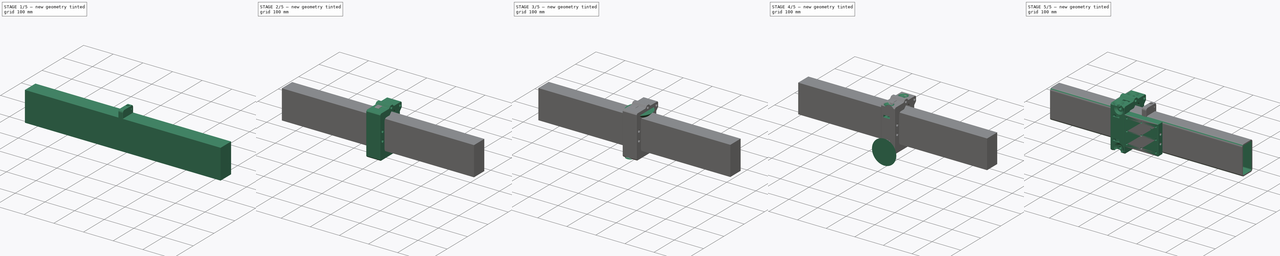
[diagram: build sequence overview — one tinted view per stage of 5, left to right]
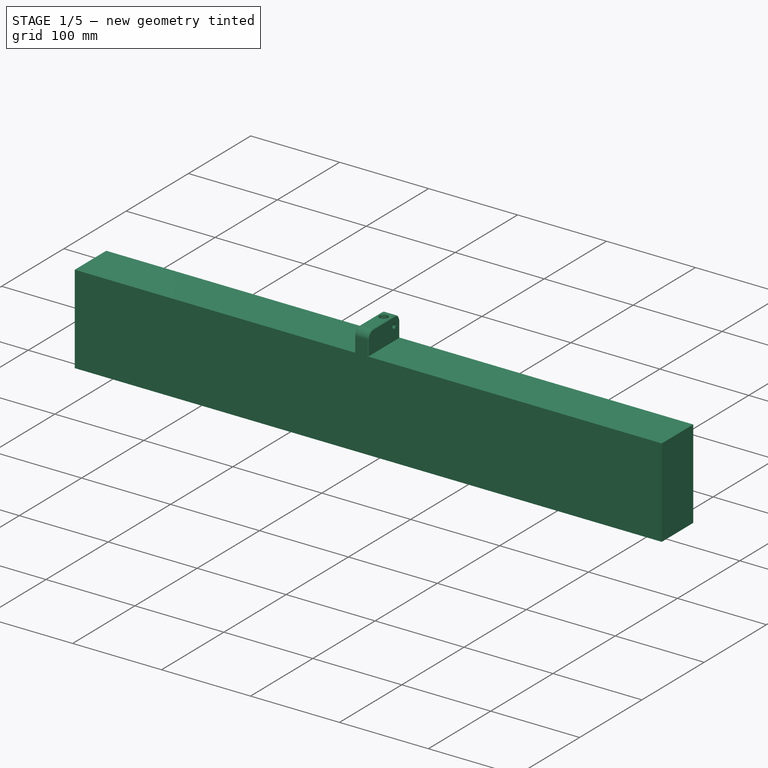
[diagram: stage 1 of 5 — iso view after this stage's code; geometry added in this stage tinted green]
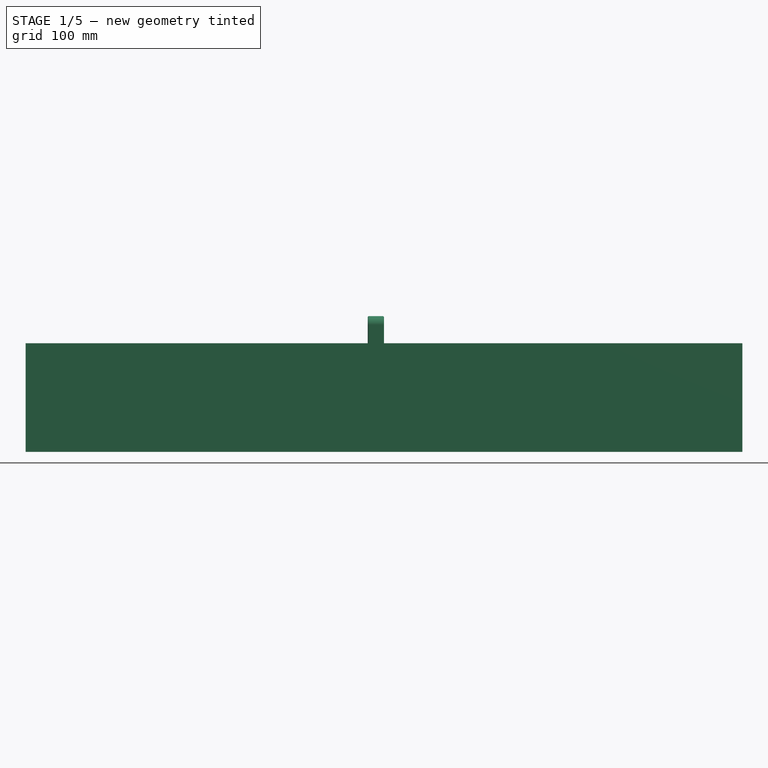
[diagram: stage 1 of 5 — front view after this stage's code; geometry added in this stage tinted green]
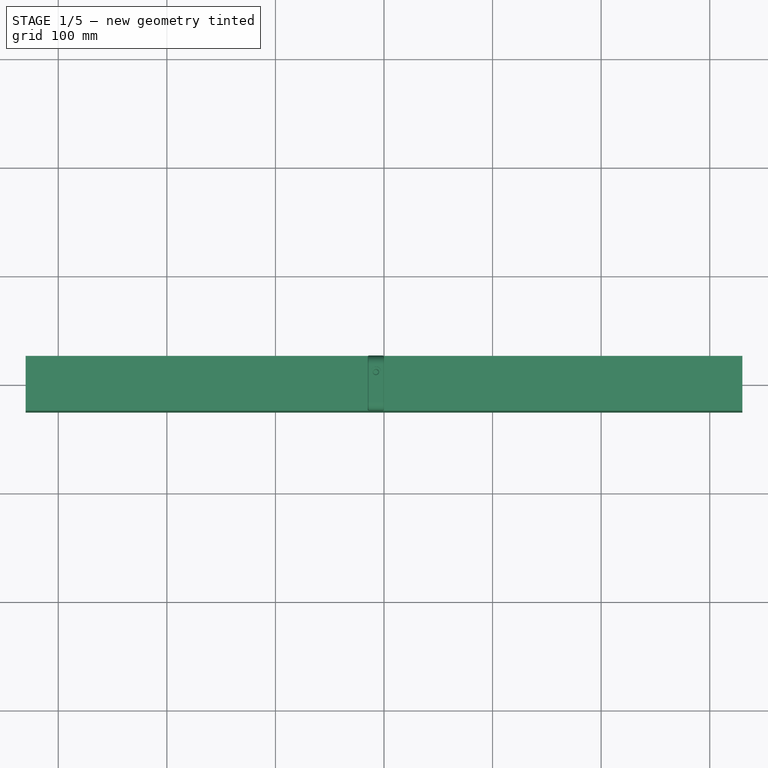
[diagram: stage 1 of 5 — top view after this stage's code; geometry added in this stage tinted green]
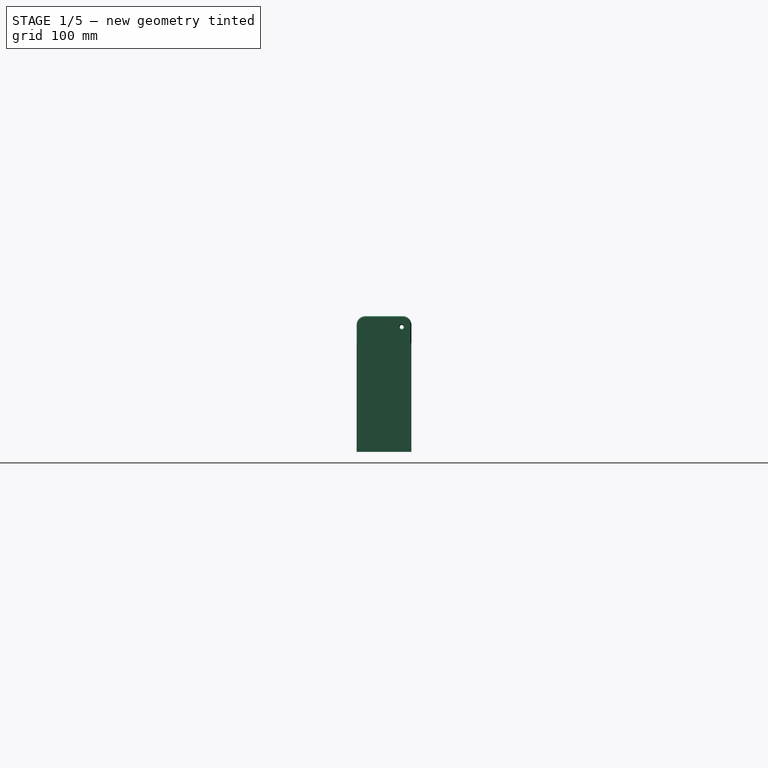
[diagram: stage 1 of 5 — right view after this stage's code; geometry added in this stage tinted green]
FCSTD DOCUMENT  (FreeCAD 1.0R39285 (Git))
Label: Fabricatable-Axis-6.0
License: Creative Commons Attribution-ShareAlike 4.0
LicenseURL: https://creativecommons.org/licenses/by-sa/4.0/
objects: Sketcher::SketchObject×30, PartDesign::Pad×20, Part::FeaturePython×18, PartDesign::Body×12, PartDesign::Chamfer×11, PartDesign::Fillet×9, PartDesign::Pocket×6, PartDesign::Hole×4, Part::Compound×3, Part::Cut×3, App::Link×3, App::Part×2, App::VarSet×1, PartDesign::Thickness×1, PartDesign::LinearPattern×1, PartDesign::FeatureBase×1, Part::MultiFuse×1
note: 254 computed .brp shape members not serialized (recipe doc carries the construction recipe); baked Part::Feature solids carry a one-line shape summary decoded from their .brp
EXTERNAL_REF file=Bicycle-chain-drive-for-fabricatable-axis-6.0.FCStd obj=Part002
EXTERNAL_REF file=Foot-for-test-axis.FCStd obj=Body

FEATURE [PartDesign::Body] Body012  label="Connector for bearing rings"
  AllowCompound = false
  Group = -> [Sketch023,Pad016,Sketch024,Hole,Chamfer009]
  Origin = -> Origin016
  Tip = -> Chamfer009
FEATURE [Sketcher::SketchObject] Sketch025
  ArcFitTolerance = 1e-06
  AttachmentSupport = -> [YZ_Plane017]
  FullyConstrained = true
  MakeInternals = false
  MapMode = 5
  Placement = pos=(0,0,0) rot=(0.57735,0.57735,0.57735;2.0944rad)
  expr: Constraints[10] = VarSet.Tube_height / 2 - 20 mm
  expr: Constraints[8] = VarSet.Tube_width
  expr: Constraints[9] = VarSet.Tube_height / 2
  sketch-geometry (4):
    g0: LineSegment StartX=-25.25 StartY=30 StartZ=0 EndX=25.25 EndY=30 EndZ=0
    g1: LineSegment StartX=25.25 StartY=30 StartZ=0 EndX=25.25 EndY=50 EndZ=0
    g2: LineSegment StartX=25.25 StartY=50 StartZ=0 EndX=-25.25 EndY=50 EndZ=0
    g3: LineSegment StartX=-25.25 StartY=50 StartZ=0 EndX=-25.25 EndY=30 EndZ=0
  constraints (11):
    c: Coincident(g0,g1)
    c: Coincident(g1,g2)
    c: Coincident(g2,g3)
    c: Coincident(g3,g0)
    c: Horizontal(g0)
    c: Vertical(g1)
    c: Vertical(g3)
    c: Symmetric(g1,g2,g-2)
    c: Distance(g2) = 50.5
    c: DistanceY(g-1,g1) = 50
    c: DistanceY(g-1,g0) = 30
FEATURE [PartDesign::Pad] Pad017
  Direction = (1,0,0)
  Length = 15
  Length2 = 10
  Placement = pos=(0,0,0) rot=(1,1,1;2.0944rad)
  Profile = -> Sketch025
  ReferenceAxis = -> Sketch025 [N_Axis]
  Refine = true
  Suppressed = false
  Type = 0
FEATURE [PartDesign::Fillet] Fillet009
  Base = -> Pad017 [Edge8,Edge1,Edge2,Edge5]
  BaseFeature = -> Pad017
  Placement = pos=(0,0,0) rot=(1,1,1;2.0944rad)
  Radius = 8
  Refine = true
  SupportTransform = false
  Suppressed = false
  UseAllEdges = false
  expr: Radius = VarSet.Tube_fillet_radius
FEATURE [Sketcher::SketchObject] Sketch026
  ArcFitTolerance = 1e-06
  AttachmentSupport = -> [YZ_Plane017]
  ExternalGeometry = -> [Fillet009]
  FullyConstrained = true
  MakeInternals = false
  MapMode = 5
  Placement = pos=(0,0,0) rot=(0.57735,0.57735,0.57735;2.0944rad)
  expr: Constraints[7] = VarSet.Tube_thickness
  sketch-geometry (4):
    g0: LineSegment StartX=-17.15 StartY=46 StartZ=0 EndX=-17.15 EndY=30 EndZ=0
    g1: LineSegment StartX=-17.15 StartY=30 StartZ=0 EndX=17.15 EndY=30 EndZ=0
    g2: LineSegment StartX=17.15 StartY=30 StartZ=0 EndX=17.15 EndY=46 EndZ=0
    g3: LineSegment StartX=17.15 StartY=46 StartZ=0 EndX=-17.15 EndY=46 EndZ=0
  constraints (11):
    c: Coincident(g0,g1)
    c: Coincident(g1,g2)
    c: Coincident(g2,g3)
    c: Coincident(g3,g0)
    c: Vertical(g0)
    c: Vertical(g2)
    c: Horizontal(g1)
    c: Distance(g0,g-4) = 4
    c: PointOnObject(g0,g-3)
    c: Distance(g0,g-3) = 0.1
    c: Symmetric(g0,g2,g-2)
FEATURE [PartDesign::Pad] Pad018
  BaseFeature = -> Fillet009
  Direction = (1,0,0)
  Length = 15
  Length2 = 10
  Placement = pos=(0,0,0) rot=(1,1,1;2.0944rad)
  Profile = -> Sketch026
  ReferenceAxis = -> Sketch026 [N_Axis]
  Refine = true
  Reversed = true
  Suppressed = false
  Type = 0
FEATURE [PartDesign::Fillet] Fillet010
  Base = -> Pad018 [Edge32,Edge29,Edge30,Edge34]
  BaseFeature = -> Pad018
  Placement = pos=(0,0,0) rot=(1,1,1;2.0944rad)
  Radius = 2
  Refine = true
  SupportTransform = false
  Suppressed = false
  UseAllEdges = false
FEATURE [Sketcher::SketchObject] Sketch027
  ArcFitTolerance = 1e-06
  AttachmentSupport = -> [XY_Plane017]
  FullyConstrained = true
  MakeInternals = false
  MapMode = 5
  expr: Constraints[0] = VarSet.Tube_width / 2 - VarSet.Tube_fillet_radius - 1 mm
  expr: Constraints[1] = 4 / 2 + 1.5
  sketch-geometry (1):
    g0: Circle CenterX=3.5 CenterY=16.25 CenterZ=0 NormalX=0 NormalY=0 NormalZ=1 AngleXU=0 Radius=1.825
  constraints (3):
    c: DistanceY(g-1,g0) = 16.25
    c: DistanceX(g-2,g0) = 3.5
    c: Diameter(g0) = 3.65
FEATURE [PartDesign::Pocket] Pocket003
  BaseFeature = -> Fillet010
  Direction = (0,0,-1)
  Length = 5
  Length2 = 5
  Midplane = true
  Placement = pos=(0,0,0) rot=(1,1,1;2.0944rad)
  Profile = -> Sketch027
  ReferenceAxis = -> Sketch027 [N_Axis]
  Refine = true
  Suppressed = false
  Type = 1
FEATURE [Sketcher::SketchObject] Sketch028
  ArcFitTolerance = 1e-06
  AttachmentSupport = -> [XY_Plane017]
  FullyConstrained = true
  MakeInternals = false
  MapMode = 5
  sketch-geometry (1):
    g0: Circle CenterX=-5 CenterY=0 CenterZ=0 NormalX=0 NormalY=0 NormalZ=1 AngleXU=0 Radius=2.3
  constraints (3):
    c: PointOnObject(g0,g-1)
    c: DistanceX(g-2,g0) = -5
    c: Diameter(g0) = 4.6
FEATURE [PartDesign::Pocket] Pocket004
  BaseFeature = -> Pocket003
  Direction = (0,0,-1)
  Length = 5
  Length2 = 5
  Placement = pos=(0,0,0) rot=(1,1,1;2.0944rad)
  Profile = -> Sketch028
  ReferenceAxis = -> Sketch028 [N_Axis]
  Refine = true
  Reversed = true
  Suppressed = false
  Type = 1
FEATURE [Sketcher::SketchObject] Sketch029
  ArcFitTolerance = 1e-06
  AttachmentSupport = -> [Pocket004]
  FullyConstrained = false
  MakeInternals = false
  MapMode = 5
  Placement = pos=(15,0,0) rot=(0.57735,0.57735,0.57735;2.0944rad)
  expr: Constraints[2] = VarSet.Tube_height / 2 - 10 mm
  sketch-geometry (2):
    g0: Circle CenterX=-10 CenterY=40 CenterZ=0 NormalX=0 NormalY=0 NormalZ=1 AngleXU=0 Radius=5.4284
    g1: Circle CenterX=10 CenterY=40 CenterZ=0 NormalX=0 NormalY=0 NormalZ=1 AngleXU=0 Radius=4.43586
  constraints (3):
    c: Symmetric(g0,g1,g-2)
    c: Distance(g1,g0) = 20
    c: DistanceY(g-1,g0) = 40
FEATURE [PartDesign::Hole] Hole001
  BaseFeature = -> Pocket004
  CustomThreadClearance = 0
  Depth = 125.342
  DepthType = 1
  Diameter = 4.6
  DrillForDepth = false
  DrillPoint = 1
  DrillPointAngle = 118
  HoleCutCountersinkAngle = 90
  HoleCutCustomValues = false
  HoleCutDepth = 0
  HoleCutDiameter = 11
  HoleCutType = 2
  ModelThread = false
  Placement = pos=(0,0,0) rot=(1,1,1;2.0944rad)
  Profile = -> Sketch029
  Refine = true
  Suppressed = false
  Tapered = false
  TaperedAngle = 90
  ThreadClass = 0
  ThreadDepth = 125.342
  ThreadDepthType = 0
  ThreadDirection = 0
  ThreadFit = 0
  ThreadSize = 0
  ThreadType = 0
  Threaded = false
  UseCustomThreadClearance = false
FEATURE [PartDesign::Body] Body013  label="Chain lock - non-adjustable"
  AllowCompound = false
  Group = -> [Sketch025,Pad017,Fillet009,Sketch026,Pad018,Fillet010,Sketch027,Pocket003,Sketch028,Pocket004,Sketch029,Hole001,Chamfer010]
  Origin = -> Origin017
  Placement = pos=(330,0,0) rot=(0,0,1;0rad)
  Tip = -> Chamfer010
  expr: .Placement.Base.x = Pad.Length / 2
FEATURE [Sketcher::SketchObject] Sketch030
  ArcFitTolerance = 1e-06
  AttachmentSupport = -> [YZ_Plane018]
  FullyConstrained = true
  MakeInternals = false
  MapMode = 5
  Placement = pos=(0,0,0) rot=(0.57735,0.57735,0.57735;2.0944rad)
  expr: Constraints[11] = VarSet.Tube_width
  expr: Constraints[13] = VarSet.Tube_width / 2 - VarSet.Tube_fillet_radius - 1 mm
  expr: Constraints[7] = VarSet.Tube_height / 2 - 20 mm
  expr: Constraints[8] = VarSet.Tube_height / 2 + 15 mm
  expr: Constraints[9] = VarSet.Tube_height / 2 + 25 mm
  sketch-geometry (5):
    g0: LineSegment StartX=-25.25 StartY=75 StartZ=0 EndX=-25.25 EndY=30 EndZ=0
    g1: LineSegment StartX=-25.25 StartY=30 StartZ=0 EndX=25.25 EndY=30 EndZ=0
    g2: LineSegment StartX=25.25 StartY=30 StartZ=0 EndX=25.25 EndY=75 EndZ=0
    g3: LineSegment StartX=25.25 StartY=75 StartZ=0 EndX=-25.25 EndY=75 EndZ=0
    g4: Circle CenterX=16.25 CenterY=65 CenterZ=0 NormalX=0 NormalY=0 NormalZ=1 AngleXU=0 Radius=1.825
  constraints (14):
    c: Coincident(g0,g1)
    c: Coincident(g1,g2)
    c: Coincident(g2,g3)
    c: Coincident(g3,g0)
    c: Vertical(g0)
    c: Vertical(g2)
    c: Horizontal(g3)
    c: DistanceY(g-1,g1) = 30
    c: DistanceY(g-1,g4) = 65
    c: DistanceY(g-1,g2) = 75
    c: Symmetric(g1,g0,g-2)
    c: Distance(g3) = 50.5
    c: Diameter(g4) = 3.65
    c: DistanceX(g-2,g4) = 16.25
FEATURE [PartDesign::Pad] Pad019
  Direction = (1,0,0)
  Length = 15
  Length2 = 10
  Placement = pos=(0,0,0) rot=(1,1,1;2.0944rad)
  Profile = -> Sketch030
  ReferenceAxis = -> Sketch030 [N_Axis]
  Refine = true
  Reversed = true
  Suppressed = false
  Type = 0
FEATURE [PartDesign::Fillet] Fillet011
  Base = -> Pad019 [Edge1,Edge2,Edge5,Edge8]
  BaseFeature = -> Pad019
  Placement = pos=(0,0,0) rot=(1,1,1;2.0944rad)
  Radius = 8
  Refine = true
  SupportTransform = false
  Suppressed = false
  UseAllEdges = false
  expr: Radius = VarSet.Tube_fillet_radius
FEATURE [Sketcher::SketchObject] Sketch031
  ArcFitTolerance = 1e-06
  AttachmentSupport = -> [Fillet011]
  ExternalGeometry = -> [Fillet011]
  FullyConstrained = true
  MakeInternals = false
  MapMode = 5
  Placement = pos=(0,0,0) rot=(0.57735,0.57735,0.57735;2.0944rad)
  expr: Constraints[10] = VarSet.Tube_height / 2 - VarSet.Tube_thickness
  sketch-geometry (4):
    g0: LineSegment StartX=-17.15 StartY=30 StartZ=0 EndX=17.15 EndY=30 EndZ=0
    g1: LineSegment StartX=17.15 StartY=30 StartZ=0 EndX=17.15 EndY=46 EndZ=0
    g2: LineSegment StartX=17.15 StartY=46 StartZ=0 EndX=-17.15 EndY=46 EndZ=0
    g3: LineSegment StartX=-17.15 StartY=46 StartZ=0 EndX=-17.15 EndY=30 EndZ=0
  constraints (11):
    c: Coincident(g0,g1)
    c: Coincident(g1,g2)
    c: Coincident(g2,g3)
    c: Coincident(g3,g0)
    c: Horizontal(g2)
    c: Vertical(g1)
    c: Vertical(g3)
    c: PointOnObject(g0,g-3)
    c: Symmetric(g0,g0,g-2)
    c: Distance(g0,g-3) = 0.1
    c: DistanceY(g-1,g1) = 46
FEATURE [PartDesign::Pad] Pad020
  BaseFeature = -> Fillet011
  Direction = (1,0,0)
  Length = 15
  Length2 = 10
  Placement = pos=(0,0,0) rot=(1,1,1;2.0944rad)
  Profile = -> Sketch031
  ReferenceAxis = -> Sketch031 [N_Axis]
  Refine = true
  Suppressed = false
  Type = 0
FEATURE [PartDesign::Fillet] Fillet012
  Base = -> Pad020 [Edge34,Edge36,Edge31,Edge32]
  BaseFeature = -> Pad020
  Placement = pos=(0,0,0) rot=(1,1,1;2.0944rad)
  Radius = 2
  Refine = true
  SupportTransform = false
  Suppressed = false
  UseAllEdges = false
FEATURE [Sketcher::SketchObject] Sketch032
  ArcFitTolerance = 1e-06
  AttachmentSupport = -> [Fillet012]
  FullyConstrained = false
  MakeInternals = false
  MapMode = 5
  Placement = pos=(0,1.65e-14,75) rot=(0,0,-1;1.5708rad)
  expr: Constraints[0] = -Pad019.Length / 2
  expr: Constraints[1] = -VarSet.Tube_width / 2 + VarSet.Tube_fillet_radius + 1 mm + 3.5 mm + 2.5 mm
  sketch-geometry (1):
    g0: Circle CenterX=-10.25 CenterY=-7.5 CenterZ=0 NormalX=0 NormalY=0 NormalZ=1 AngleXU=0 Radius=2.51289
  constraints (2):
    c: DistanceY(g-1,g0) = -7.5
    c: DistanceX(g-2,g0) = -10.25
FEATURE [PartDesign::Hole] Hole002
  BaseFeature = -> Fillet012
  CustomThreadClearance = 0
  Depth = 149.47
  DepthType = 1
  Diameter = 4.6
  DrillForDepth = false
  DrillPoint = 1
  DrillPointAngle = 118
  HoleCutCountersinkAngle = 90
  HoleCutCustomValues = false
  HoleCutDepth = 5
  HoleCutDiameter = 9.5
  HoleCutType = 1
  ModelThread = false
  Placement = pos=(0,0,0) rot=(1,1,1;2.0944rad)
  Profile = -> Sketch032
  Refine = true
  Suppressed = false
  Tapered = false
  TaperedAngle = 90
  ThreadClass = 0
  ThreadDepth = 149.47
  ThreadDepthType = 0
  ThreadDirection = 0
  ThreadFit = 0
  ThreadSize = 0
  ThreadType = 0
  Threaded = false
  UseCustomThreadClearance = false
FEATURE [Sketcher::SketchObject] Sketch033
  ArcFitTolerance = 1e-06
  AttachmentSupport = -> [Hole002]
  FullyConstrained = true
  MakeInternals = false
  MapMode = 5
  Placement = pos=(0,1.01e-14,46) rot=(0,0,-1;1.5708rad)
  sketch-geometry (1):
    g0: Circle CenterX=0 CenterY=7 CenterZ=0 NormalX=0 NormalY=0 NormalZ=1 AngleXU=0 Radius=2.3
  constraints (3):
    c: PointOnObject(g0,g-2)
    c: DistanceY(g-1,g0) = 7
    c: Diameter(g0) = 4.6
FEATURE [PartDesign::Pocket] Pocket005
  BaseFeature = -> Hole002
  Direction = (0,0,-1)
  Length = 5
  Length2 = 5
  Placement = pos=(0,0,0) rot=(1,1,1;2.0944rad)
  Profile = -> Sketch033
  ReferenceAxis = -> Sketch033 [N_Axis]
  Refine = true
  Suppressed = false
  Type = 1
FEATURE [Sketcher::SketchObject] Sketch034
  ArcFitTolerance = 1e-06
  AttachmentSupport = -> [Pocket005]
  FullyConstrained = true
  MakeInternals = false
  MapMode = 5
  Placement = pos=(-15,0,0) rot=(0.57735,0.57735,-0.57735;4.18879rad)
  expr: Constraints[2] = -VarSet.Tube_height / 2 + 10 mm
  sketch-geometry (2):
    g0: Circle CenterX=5.1 CenterY=-40 CenterZ=0 NormalX=0 NormalY=0 NormalZ=1 AngleXU=0 Radius=2.3
    g1: Circle CenterX=-9.9 CenterY=-40 CenterZ=0 NormalX=0 NormalY=0 NormalZ=1 AngleXU=0 Radius=2.3
  constraints (6):
    c: Equal(g0,g1)
    c: Diameter(g0) = 4.6
    c: DistanceY(g-1,g0) = -40
    c: Horizontal(g1,g0)
    c: DistanceX(g-2,g0) = 5.1
    c: Distance(g1,g0) = 15
FEATURE [PartDesign::Hole] Hole003
  BaseFeature = -> Pocket005
  CustomThreadClearance = 0
  Depth = 149.47
  DepthType = 1
  Diameter = 4.6
  DrillForDepth = false
  DrillPoint = 1
  DrillPointAngle = 118
  HoleCutCountersinkAngle = 90
  HoleCutCustomValues = false
  HoleCutDepth = 0
  HoleCutDiameter = 11
  HoleCutType = 2
  ModelThread = false
  Placement = pos=(0,0,0) rot=(1,1,1;2.0944rad)
  Profile = -> Sketch034
  Refine = true
  Suppressed = false
  Tapered = false
  TaperedAngle = 90
  ThreadClass = 0
  ThreadDepth = 149.47
  ThreadDepthType = 0
  ThreadDirection = 0
  ThreadFit = 0
  ThreadSize = 0
  ThreadType = 0
  Threaded = false
  UseCustomThreadClearance = false
FEATURE [PartDesign::Chamfer] Chamfer011
  Angle = 45
  Base = -> Hole003 [Edge49,Face18,Face20,Face21,Edge14,Face17]
  BaseFeature = -> Hole003
  ChamferType = 0
  FlipDirection = false
  Placement = pos=(0,0,0) rot=(1,1,1;2.0944rad)
  Refine = true
  Size = 0.8
  Size2 = 1
  SupportTransform = false
  Suppressed = false
  UseAllEdges = false
FEATURE [PartDesign::Body] Body014  label="Chain lock - adjustable"
  AllowCompound = false
  Group = -> [Sketch030,Pad019,Fillet011,Sketch031,Pad020,Fillet012,Sketch032,Hole002,Sketch033,Pocket005,Sketch034,Hole003,Chamfer011]
  Origin = -> Origin018
  Placement = pos=(-330,0,0) rot=(0,0,1;0rad)
  Tip = -> Chamfer011
  expr: .Placement.Base.x = -Pad.Length / 2
FEATURE [App::Link] Link  label="Bicycle chain drive - positioned"
  LinkPlacement = pos=(0,17.25,50) rot=(0,0,1;0rad)
  LinkedObject = -> <external Bicycle-chain-drive-for-fabricatable-axis-6.0.FCStd>#Part002
  Placement = pos=(0,17.25,50) rot=(0,0,1;0rad)
  expr: .Placement.Base.y = VarSet.Tube_width / 2 - VarSet.Tube_fillet_radius
  expr: .Placement.Base.z = VarSet.Tube_height / 2
FEATURE [App::Link] Link001  label="Foot"
  LinkPlacement = pos=(330,0,0) rot=(0,0,1;0rad)
  LinkedObject = -> <external Foot-for-test-axis.FCStd>#Body
  Placement = pos=(330,0,0) rot=(0,0,1;0rad)
  expr: .Placement.Base.x = Pad.Length / 2
FEATURE [App::Link] Link002  label="Foot001"
  LinkPlacement = pos=(-330,6.7928e-12,0) rot=(0,0,1;3.14159rad)
  LinkedObject = -> <external Foot-for-test-axis.FCStd>#Body
  Placement = pos=(-330,6.7928e-12,0) rot=(0,0,1;3.14159rad)
  expr: .Placement.Base.x = Pad.Length / -2

RESOLVED EXTERNAL PARTS (link-assembly join: the EXTERNAL_REF files above that resolve inside this repo's crawl, each included once):
---- part Bicycle-chain-drive-for-fabricatable-axis-6.0.FCStd = doc fcstd_d84e5fe6d0d5 (75133 chars; too large to inline — full recipe in that document) ----
---- part Foot-for-test-axis.FCStd = doc fcstd_fe5c53782877 ----
FCSTD DOCUMENT  (FreeCAD 1.0R39285 (Git))
Label: Foot-for-test-axis
License: Creative Commons Attribution-ShareAlike 4.0
LicenseURL: https://creativecommons.org/licenses/by-sa/4.0/
objects: Sketcher::SketchObject×4, PartDesign::Pocket×3, PartDesign::Fillet×2, PartDesign::Pad×1, PartDesign::Hole×1, PartDesign::Chamfer×1, PartDesign::Body×1
note: 33 computed .brp shape members not serialized (recipe doc carries the construction recipe); baked Part::Feature solids carry a one-line shape summary decoded from their .brp

FEATURE [Sketcher::SketchObject] Sketch
  ArcFitTolerance = 1e-06
  AttachmentSupport = -> [YZ_Plane]
  FullyConstrained = true
  MakeInternals = false
  MapMode = 5
  Placement = pos=(0,0,0) rot=(0.57735,0.57735,0.57735;2.0944rad)
  expr: Constraints[22] = -50 + 4
  expr: Constraints[23] = 4 + 45 + 22 + 1.5
  sketch-geometry (12):
    g0: LineSegment StartX=-65 StartY=-118.5 StartZ=0 EndX=-35 EndY=-118.5 EndZ=0
    g1: LineSegment StartX=-35 StartY=-118.5 StartZ=0 EndX=-31.2679 EndY=-117.5 EndZ=0
    g2: LineSegment StartX=-31.2679 StartY=-117.5 StartZ=0 EndX=31.2679 EndY=-117.5 EndZ=0
    g3: LineSegment StartX=31.2679 StartY=-117.5 StartZ=0 EndX=35 EndY=-118.5 EndZ=0
    g4: LineSegment StartX=35 StartY=-118.5 StartZ=0 EndX=65 EndY=-118.5 EndZ=0
    g5: LineSegment StartX=65 StartY=-118.5 StartZ=0 EndX=65 EndY=-106.5 EndZ=0
    g6: LineSegment StartX=65 StartY=-106.5 StartZ=0 EndX=25 EndY=-106.5 EndZ=0
    g7: LineSegment StartX=25 StartY=-106.5 StartZ=0 EndX=25 EndY=-46 EndZ=0
    g8: LineSegment StartX=25 StartY=-46 StartZ=0 EndX=-25 EndY=-46 EndZ=0
    g9: LineSegment StartX=-25 StartY=-46 StartZ=0 EndX=-25 EndY=-106.5 EndZ=0
    g10: LineSegment StartX=-25 StartY=-106.5 StartZ=0 EndX=-65 EndY=-106.5 EndZ=0
    g11: LineSegment StartX=-65 StartY=-106.5 StartZ=0 EndX=-65 EndY=-118.5 EndZ=0
  constraints (30):
    c: Horizontal(g0)
    c: Coincident(g0,g1)
    c: Coincident(g1,g2)
    c: Coincident(g2,g3)
    c: Coincident(g3,g4)
    c: Coincident(g4,g5)
    c: Coincident(g5,g6)
    c: Horizontal(g6)
    c: Coincident(g6,g7)
    c: Vertical(g7)
    c: Coincident(g7,g8)
    c: Coincident(g8,g9)
    c: Coincident(g9,g10)
    c: Coincident(g10,g11)
    c: Coincident(g11,g0)
    c: Symmetric(g8,g7,g-2)
    c: Symmetric(g9,g6,g-2)
    c: Symmetric(g10,g5,g-2)
    c: Symmetric(g4,g0,g-2)
    c: Symmetric(g0,g3,g-2)
    c: Symmetric(g2,g1,g-2)
    c: Distance(g8) = 50
    c: DistanceY(g-1,g7) = -46
    c: Distance(g7,g4) = 72.5
    c: Distance(g4,g0) = 130
    c: Distance(g0) = 30
    c: Vertical(g11)
    c: Angle(g2,g3) = 2.87979
    c: DistanceY(g3,g2) = 1
    c: Distance(g5) = 12
FEATURE [PartDesign::Pad] Pad
  Direction = (1,0,0)
  Length = 30
  Length2 = 10
  Midplane = true
  Placement = pos=(0,0,0) rot=(1,1,1;2.0944rad)
  Profile = -> Sketch
  ReferenceAxis = -> Sketch [N_Axis]
  Refine = true
  Suppressed = false
  Type = 0
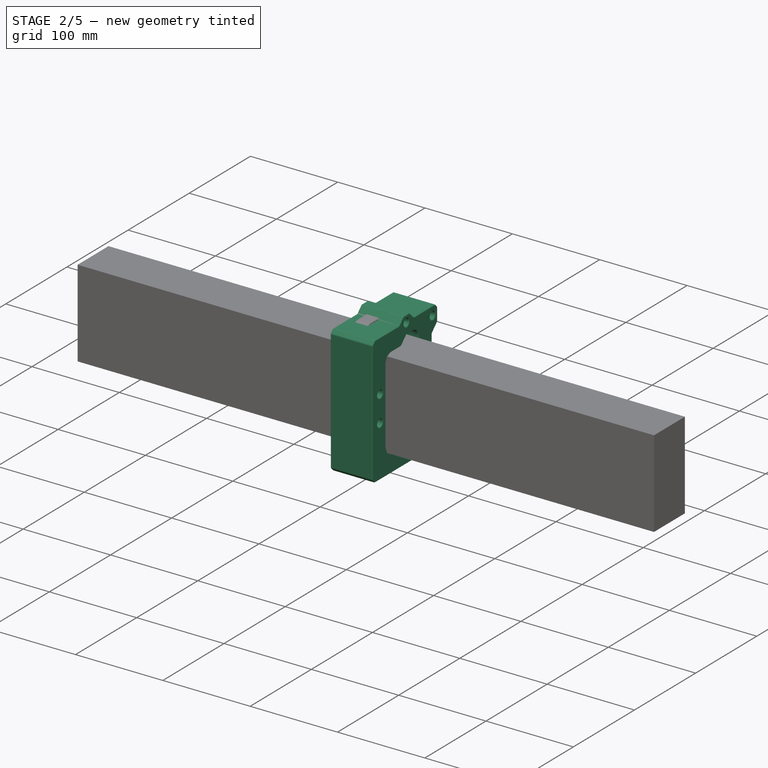
[diagram: stage 2 of 5 — iso view after this stage's code; geometry added in this stage tinted green]
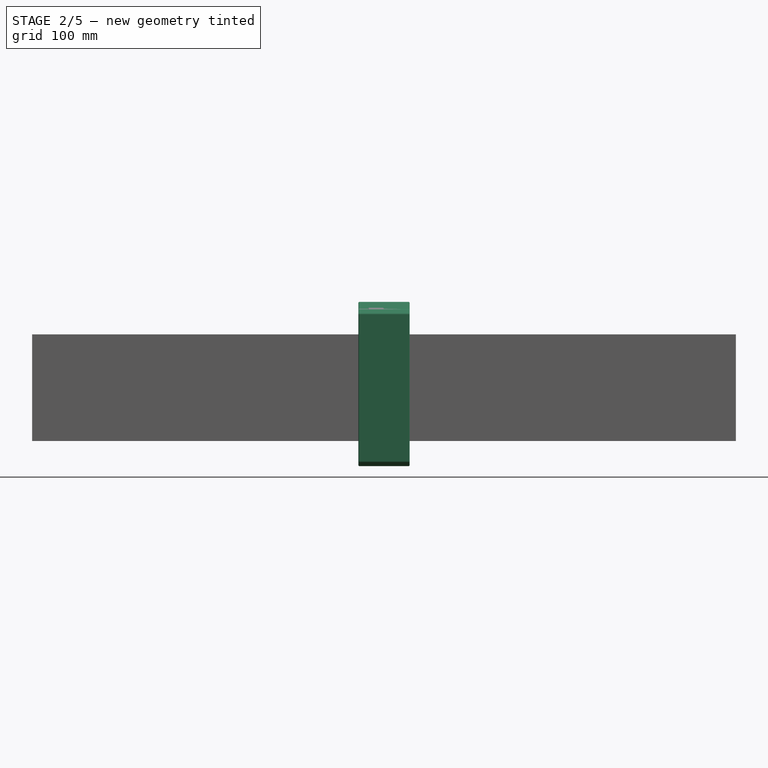
[diagram: stage 2 of 5 — front view after this stage's code; geometry added in this stage tinted green]
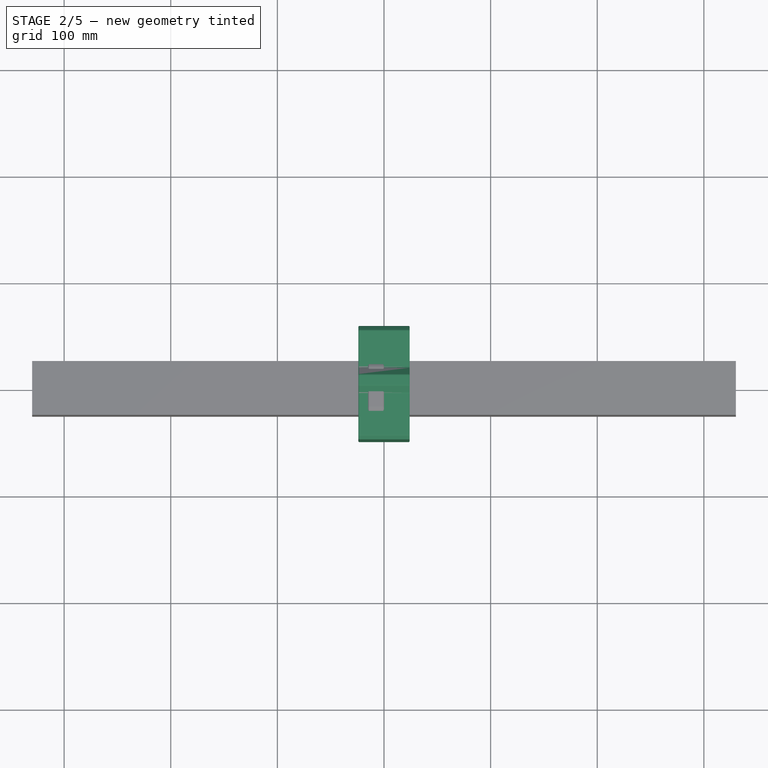
[diagram: stage 2 of 5 — top view after this stage's code; geometry added in this stage tinted green]
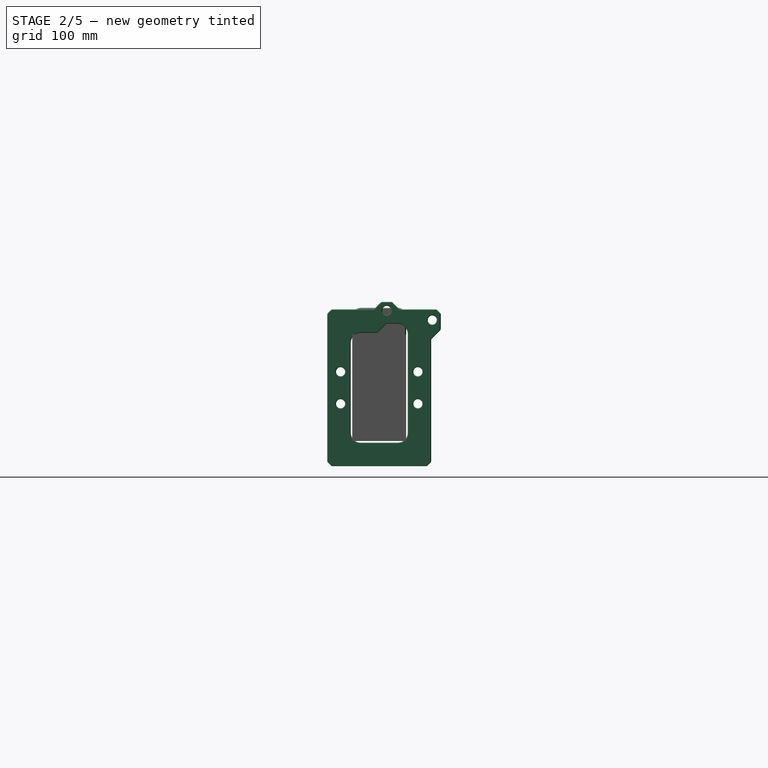
[diagram: stage 2 of 5 — right view after this stage's code; geometry added in this stage tinted green]
FEATURE [App::Part] Part001  label="Bearings"
  Group = -> [Body001,Clone,Clone001,Clone002,Clone003,Clone004,Clone005]
  Origin = -> Origin005
FEATURE [PartDesign::Pad] Pad002
  Direction = (1,0,0)
  Length = 48
  Length2 = 10
  Midplane = true
  Placement = pos=(0,0,0) rot=(1,1,1;2.0944rad)
  Profile = -> Sketch003
  ReferenceAxis = -> Sketch003 [N_Axis]
  Refine = true
  Suppressed = false
  Type = 0
  expr: Length = VarSet.Bearing_axle_screw_diameter + VarSet.Screw_offset + VarSet.Bearing_od + VarSet.Bearing_distance_from_edge * 2
FEATURE [Sketcher::SketchObject] Sketch005
  ArcFitTolerance = 1e-06
  AttachmentSupport = -> [XY_Plane008]
  FullyConstrained = true
  MakeInternals = false
  MapMode = 5
  expr: Constraints[11] = -VarSet.Bearing_od / 2 - VarSet.Carriage_to_bearing_top_clearance
  expr: Constraints[31] = VarSet.Bearing_slot_width_margin + VarSet.Bearing_od + 2 mm
  expr: Constraints[32] = -VarSet.Bearing_od / 2 - VarSet.Carriage_to_bearing_top_clearance + 1 mm
  expr: Constraints[33] = -VarSet.Bearing_od / 2 - VarSet.Carriage_to_bearing_top_clearance + 3 mm
  expr: Constraints[8] = VarSet.Bearing_slot_width_margin + VarSet.Bearing_od
  expr: Constraints[9] = VarSet.Bearing_od / 2
  sketch-geometry (13):
    g0: LineSegment StartX=11.5 StartY=-12.5 StartZ=0 EndX=11.5 EndY=11 EndZ=0
    g1: LineSegment StartX=11.5 StartY=11 StartZ=0 EndX=-11.5 EndY=11 EndZ=0
    g2: LineSegment StartX=-11.5 StartY=11 StartZ=0 EndX=-11.5 EndY=-12.5 EndZ=0
    g3: LineSegment StartX=-11.5 StartY=-12.5 StartZ=0 EndX=11.5 EndY=-12.5 EndZ=0
    g4: GeomPoint [constr] X=0 Y=0 Z=0
    g5: LineSegment StartX=11.5 StartY=-11.5 StartZ=0 EndX=12.5 EndY=-11.5 EndZ=0
    g6: LineSegment StartX=12.5 StartY=-11.5 StartZ=0 EndX=12.5 EndY=-9.5 EndZ=0
    g7: LineSegment StartX=12.5 StartY=-9.5 StartZ=0 EndX=11.5 EndY=-9.5 EndZ=0
    g8: LineSegment StartX=11.5 StartY=-9.5 StartZ=0 EndX=11.5 EndY=-11.5 EndZ=0
    g9: LineSegment StartX=-11.5 StartY=-9.5 StartZ=0 EndX=-12.5 EndY=-9.5 EndZ=0
    g10: LineSegment StartX=-12.5 StartY=-9.5 StartZ=0 EndX=-12.5 EndY=-11.5 EndZ=0
    g11: LineSegment StartX=-12.5 StartY=-11.5 StartZ=0 EndX=-11.5 EndY=-11.5 EndZ=0
    g12: LineSegment StartX=-11.5 StartY=-11.5 StartZ=0 EndX=-11.5 EndY=-9.5 EndZ=0
  constraints (34):
    c: Coincident(g0,g1)
    c: Coincident(g1,g2)
    c: Coincident(g2,g3)
    c: Coincident(g3,g0)
    c: Vertical(g0)
    c: Vertical(g2)
    c: Horizontal(g1)
    c: Coincident(g4,g-1)
    c: Distance(g3) = 23
    c: DistanceY(g-1,g0) = 11
    c: Symmetric(g0,g2,g-2)
    c: DistanceY(g-1,g0) = -12.5
    c: Coincident(g5,g6)
    c: Coincident(g6,g7)
    c: Coincident(g7,g8)
    c: Coincident(g8,g5)
    c: Horizontal(g5)
    c: Horizontal(g7)
    c: Vertical(g6)
    c: Vertical(g8)
    c: PointOnObject(g5,g0)
    c: Coincident(g9,g10)
    c: Coincident(g10,g11)
    c: Coincident(g11,g12)
    c: Coincident(g12,g9)
    c: Horizontal(g9)
    c: Horizontal(g11)
    c: Vertical(g10)
    c: Vertical(g12)
    c: Symmetric(g9,g7,g-2)
    c: Symmetric(g10,g5,g-2)
    c: Distance(g5,g10) = 25
    c: DistanceY(g-1,g5) = -11.5
    c: DistanceY(g-1,g6) = -9.5
FEATURE [Sketcher::SketchObject] Sketch006
  ArcFitTolerance = 1e-06
  AttachmentSupport = -> [YZ_Plane006]
  FullyConstrained = true
  MakeInternals = false
  MapMode = 5
  Placement = pos=(0,0,0) rot=(0.57735,0.57735,0.57735;2.0944rad)
  expr: Constraints[10] = Sketch003.Constraints.y - VarSet.Drive_chain_slot_width
  expr: Constraints[7] = Sketch003.Constraints.y
  expr: Constraints[8] = Sketch003.Constraints.z
  expr: Constraints[9] = VarSet.Tube_height / 2 + VarSet.Drive_chain_slot_height
  sketch-geometry (4):
    g0: LineSegment StartX=-1.75 StartY=51.5 StartZ=0 EndX=26.75 EndY=51.5 EndZ=0
    g1: LineSegment StartX=26.75 StartY=51.5 StartZ=0 EndX=26.75 EndY=60 EndZ=0
    g2: LineSegment StartX=26.75 StartY=60 StartZ=0 EndX=6.75 EndY=60 EndZ=0
    g3: LineSegment StartX=6.75 StartY=60 StartZ=0 EndX=-1.75 EndY=51.5 EndZ=0
  constraints (12):
    c: Coincident(g0,g1)
    c: Coincident(g1,g2)
    c: Coincident(g2,g3)
    c: Coincident(g3,g0)
    c: Horizontal(g0)
    c: Horizontal(g2)
    c: Vertical(g1)
    c: DistanceX(g-2,g0) = 26.75
    c: DistanceY(g-1,g0) = 51.5
    c: DistanceY(g-1,g1) = 60
    c: DistanceX(g-2,g2) = 6.75
    c: Angle(g-2,g3) = 2.35619
FEATURE [PartDesign::Pocket] Pocket
  BaseFeature = -> Pad002
  Direction = (-1,0,0)
  Length = 5
  Length2 = 5
  Midplane = true
  Placement = pos=(0,0,0) rot=(1,1,1;2.0944rad)
  Profile = -> Sketch006
  ReferenceAxis = -> Sketch006 [N_Axis]
  Refine = true
  Suppressed = false
  Type = 1
FEATURE [PartDesign::Fillet] Fillet006
  Base = -> Pocket [Edge26,Edge30,Edge29,Edge28]
  BaseFeature = -> Pocket
  Placement = pos=(0,0,0) rot=(1,1,1;2.0944rad)
  Radius = 9.5
  Refine = true
  SupportTransform = false
  Suppressed = false
  UseAllEdges = false
  expr: Radius = VarSet.Tube_fillet_radius + VarSet.Carriage_to_tube_clearance
FEATURE [PartDesign::Fillet] Fillet007
  Base = -> Fillet006 [Edge25,Edge29]
  BaseFeature = -> Fillet006
  Placement = pos=(0,0,0) rot=(1,1,1;2.0944rad)
  Radius = 2
  Refine = true
  SupportTransform = false
  Suppressed = false
  UseAllEdges = false
FEATURE [PartDesign::Chamfer] Chamfer
  Angle = 45
  Base = -> Fillet007 [Edge44,Edge46,Edge41]
  BaseFeature = -> Fillet007
  ChamferType = 0
  FlipDirection = false
  Placement = pos=(0,0,0) rot=(1,1,1;2.0944rad)
  Refine = true
  Size = 4
  Size2 = 1
  SupportTransform = false
  Suppressed = false
  UseAllEdges = false
FEATURE [PartDesign::Pad] Pad004
  Direction = (0,0,1)
  Length = 8
  Length2 = 10
  Midplane = true
  Profile = -> Sketch005
  ReferenceAxis = -> Sketch005 [N_Axis]
  Refine = true
  Suppressed = false
  Type = 0
  expr: Length = VarSet.Bearing_width + VarSet.Bearing_slot_width_margin
FEATURE [Sketcher::SketchObject] Sketch007
  ArcFitTolerance = 1e-06
  AttachmentOffset = pos=(0,0,4) rot=(0,0,1;0rad)
  AttachmentSupport = -> [XY_Plane008]
  FullyConstrained = true
  MakeInternals = false
  MapMode = 5
  Placement = pos=(0,0,4) rot=(0,0,1;0rad)
  expr: .AttachmentOffset.Base.z = Pad004.Length / 2
  expr: Constraints[1] = VarSet.Bearing_od / 1.8
  sketch-geometry (1):
    g0: Circle CenterX=0 CenterY=0 CenterZ=0 NormalX=0 NormalY=0 NormalZ=1 AngleXU=0 Radius=6.11111
  constraints (2):
    c: Coincident(g0,g-1)
    c: Diameter(g0) = 12.2222
FEATURE [PartDesign::Pocket] Pocket001
  BaseFeature = -> Pad004
  Direction = (0,0,-1)
  Length = 0.36
  Length2 = 5
  Profile = -> Sketch007
  ReferenceAxis = -> Sketch007 [N_Axis]
  Refine = true
  Suppressed = false
  Type = 0
  expr: Length = VarSet.Bearing_washer_protrusion
FEATURE [PartDesign::LinearPattern] LinearPattern
  BaseFeature = -> Pocket001
  Direction = -> Z_Axis008
  Length = 7.64
  Mode = 0
  Occurrences = 2
  Offset = 7.64
  Originals = -> [Pocket001]
  Refine = true
  Reversed = true
  Suppressed = false
  TransformMode = 0
  expr: Length = Pad004.Length - Pocket001.Length
FEATURE [PartDesign::Body] Body005  label="Body for boolean - hole maker adjustable"
  AllowCompound = false
  Group = -> [Clone007]
  Origin = -> Origin009
  Tip = -> Clone007
FEATURE [Sketcher::SketchObject] Sketch008
  ArcFitTolerance = 1e-06
  AttachmentSupport = -> [XY_Plane008]
  FullyConstrained = true
  MakeInternals = false
  MapMode = 5
  expr: Constraints[1] = VarSet.Bearing_axle_screw_selftap_diameter
  sketch-geometry (1):
    g0: Circle CenterX=0 CenterY=0 CenterZ=0 NormalX=0 NormalY=0 NormalZ=1 AngleXU=0 Radius=3.85
  constraints (2):
    c: Coincident(g0,g-1)
    c: Diameter(g0) = 7.7
FEATURE [PartDesign::Pad] Pad005
  BaseFeature = -> LinearPattern
  Direction = (0,0,1)
  Length = 29.5
  Length2 = 10
  Profile = -> Sketch008
  ReferenceAxis = -> Sketch008 [N_Axis]
  Refine = true
  Suppressed = false
  Type = 0
  expr: Length = VarSet.Bearing_width / 2 + VarSet.Bearing_distance_from_fillet + VarSet.Tube_fillet_radius + VarSet.Bearing_od + VarSet.Carriage_to_bearing_top_clearance - VarSet.Bearing_axle_screw_head_pocket_depth
FEATURE [Sketcher::SketchObject] Sketch020
  ArcFitTolerance = 1e-06
  AttachmentSupport = -> [YZ_Plane014]
  FullyConstrained = false
  MakeInternals = false
  MapMode = 5
  Placement = pos=(0,0,0) rot=(0.57735,0.57735,0.57735;2.0944rad)
  expr: Constraints[6] = VarSet.Tube_width / 2 + VarSet.Bearing_od / 2
  sketch-geometry (14):
    g0: Circle CenterX=-36.25 CenterY=16 CenterZ=0 NormalX=0 NormalY=0 NormalZ=1 AngleXU=0 Radius=4.25
    g1: Circle CenterX=-36.25 CenterY=-16 CenterZ=0 NormalX=0 NormalY=0 NormalZ=1 AngleXU=0 Radius=4.25
    g2: Circle CenterX=36.25 CenterY=-16 CenterZ=0 NormalX=0 NormalY=0 NormalZ=1 AngleXU=0 Radius=4.25
    g3: Circle CenterX=36.25 CenterY=16 CenterZ=0 NormalX=0 NormalY=0 NormalZ=1 AngleXU=0 Radius=4.25
    g4: Circle CenterX=11.1245 CenterY=78.6835 CenterZ=0 NormalX=0 NormalY=0 NormalZ=1 AngleXU=0 Radius=4.25
    g5: Circle CenterX=55.7372 CenterY=53.3051 CenterZ=0 NormalX=0 NormalY=0 NormalZ=1 AngleXU=0 Radius=4.25
    g6: LineSegment StartX=-5.79351 StartY=73.5299 StartZ=0 EndX=1.54536 EndY=84.0053 EndZ=0
    g7: LineSegment StartX=1.54536 StartY=84.0053 StartZ=0 EndX=19.0791 EndY=84.0053 EndZ=0
    g8: LineSegment StartX=19.0791 StartY=84.0053 StartZ=0 EndX=24.5689 EndY=73.5299 EndZ=0
    g9: LineSegment StartX=24.5689 StartY=73.5299 StartZ=0 EndX=-5.79351 EndY=73.5299 EndZ=0
    g10: LineSegment StartX=48.4901 StartY=42.1793 StartZ=0 EndX=65.9444 EndY=50.0388 EndZ=0
    g11: LineSegment StartX=65.9444 StartY=50.0388 StartZ=0 EndX=65.9444 EndY=68.6159 EndZ=0
    g12: LineSegment StartX=65.9444 StartY=68.6159 StartZ=0 EndX=48.4901 EndY=73.6175 EndZ=0
    g13: LineSegment StartX=48.4901 StartY=73.6175 StartZ=0 EndX=48.4901 EndY=42.1793 EndZ=0
  constraints (22):
    c: Equal(g3,g2)
    c: Equal(g2,g1)
    c: Equal(g1,g0)
    c: Symmetric(g1,g2,g-2)
    c: Symmetric(g0,g1,g-1)
    c: Symmetric(g2,g3,g-1)
    c: DistanceX(g-2,g3) = 36.25
    c: Distance(g2,g3) = 32
    c: Coincident(g6,g7)
    c: Horizontal(g7)
    c: Coincident(g7,g8)
    c: Coincident(g8,g9)
    c: Coincident(g9,g6)
    c: Horizontal(g9)
    c: Coincident(g10,g11)
    c: Vertical(g11)
    c: Coincident(g11,g12)
    c: Coincident(g12,g13)
    c: Coincident(g13,g10)
    c: Vertical(g13)
    c: Equal(g4,g5)
    c: Diameter(g4) = 8.5
FEATURE [PartDesign::Body] Body010  label="Hole sketching"
  AllowCompound = false
  Group = -> [Sketch020]
  Origin = -> Origin014
  Placement = pos=(24,0,0) rot=(0,0,1;0rad)
FEATURE [Sketcher::SketchObject] Sketch021
  ArcFitTolerance = 1e-06
  AttachmentSupport = -> [YZ_Plane006]
  ExternalGeometry = -> [Chamfer]
  FullyConstrained = true
  MakeInternals = false
  MapMode = 5
  Placement = pos=(0,0,0) rot=(0.57735,0.57735,0.57735;2.0944rad)
  expr: Constraints[21] = VarSet.Bearing_axle_screw_diameter_loose_diamter
  sketch-geometry (14):
    g0: LineSegment StartX=48.75 StartY=73.5 StartZ=0 EndX=48.75 EndY=45.5 EndZ=0
    g1: LineSegment StartX=48.75 StartY=45.5 StartZ=0 EndX=57.75 EndY=54.5 EndZ=0
    g2: LineSegment StartX=57.75 StartY=54.5 StartZ=0 EndX=57.75 EndY=73.5 EndZ=0
    g3: LineSegment StartX=57.75 StartY=73.5 StartZ=0 EndX=48.75 EndY=73.5 EndZ=0
    g4: LineSegment StartX=19 StartY=73.5 StartZ=0 EndX=12 EndY=80.5 EndZ=0
    g5: LineSegment StartX=12 StartY=80.5 StartZ=0 EndX=2 EndY=80.5 EndZ=0
    g6: LineSegment StartX=19 StartY=73.5 StartZ=0 EndX=-5 EndY=73.5 EndZ=0
    g7: LineSegment StartX=-5 StartY=73.5 StartZ=0 EndX=2 EndY=80.5 EndZ=0
    g8: Circle [constr] CenterX=7 CenterY=72.5 CenterZ=0 NormalX=0 NormalY=0 NormalZ=1 AngleXU=0 Radius=4.25
    g9: Circle [constr] CenterX=49.75 CenterY=63.5 CenterZ=0 NormalX=0 NormalY=0 NormalZ=1 AngleXU=0 Radius=4.25
    g10: LineSegment [constr] StartX=49.75 StartY=63.5 StartZ=0 EndX=48.75 EndY=63.5 EndZ=0
    g11: LineSegment [constr] StartX=49.75 StartY=63.5 StartZ=0 EndX=49.75 EndY=73.5 EndZ=0
    g12: LineSegment [constr] StartX=7 StartY=72.5 StartZ=0 EndX=7 EndY=80.5 EndZ=0
    g13: LineSegment [constr] StartX=7 StartY=72.5 StartZ=0 EndX=7 EndY=73.5 EndZ=0
  constraints (44):
    c: Coincident(g0,g1)
    c: Coincident(g1,g2)
    c: Coincident(g2,g3)
    c: Coincident(g3,g0)
    c: Vertical(g0)
    c: Vertical(g2)
    c: Coincident(g0,g-3)
    c: Coincident(g4,g5)
    c: Horizontal(g5)
    c: Angle(g-3,g1) = 2.35619
    c: Angle(g-4,g3) = 3.14159
    c: Coincident(g4,g6)
    c: PointOnObject(g6,g-4)
    c: Horizontal(g6)
    c: Coincident(g6,g7)
    c: Coincident(g7,g5)
    c: Angle(g-4,g7) = 0.785398
    c: Angle(g4,g-4) = 0.785398
    c: Coincident(g10,g9)
    c: PointOnObject(g10,g0)
    c: Equal(g8,g9)
    c: Diameter(g8) = 8.5
    c: Angle(g-4,g10) = 3.14159
    c: Distance(g10) = 1
    c: Coincident(g11,g9)
    c: Angle(g-3,g11) = 3.14159
    c: PointOnObject(g11,g-4)
    c: Distance(g11) = 10
    c: DistanceX(g-2,g8) = 7
    c: Coincident(g12,g8)
    c: PointOnObject(g12,g5)
    c: Symmetric(g5,g4,g12)
    c: Distance(g12) = 8
    c: Distance(g5) = 10
    c: Distance(g3) = 9
    c: Distance(g0) = 28
    c: DistanceX(g-2,g8) = 7  'screw1y'
    c: DistanceY(g-1,g8) = 72.5  'screw1z'
    c: DistanceX(g-2,g9) = 49.75  'screw2y'
    c: DistanceY(g-1,g9) = 63.5  'screw2z'
    c: Coincident(g13,g8)
    c: Distance(g13) = 1
    c: Angle(g-2,g13) = 0
    c: PointOnObject(g13,g-4)
FEATURE [PartDesign::Pad] Pad015
  BaseFeature = -> Chamfer
  Direction = (1,0,0)
  Length = 48
  Length2 = 10
  Midplane = true
  Placement = pos=(0,0,0) rot=(1,1,1;2.0944rad)
  Profile = -> Sketch021
  ReferenceAxis = -> Sketch021 [N_Axis]
  Refine = true
  Suppressed = false
  Type = 0
  expr: Length = Pad002.Length
FEATURE [PartDesign::Chamfer] Chamfer007
  Angle = 45
  Base = -> Pad015 [Edge26]
  BaseFeature = -> Pad015
  ChamferType = 0
  FlipDirection = false
  Placement = pos=(0,0,0) rot=(1,1,1;2.0944rad)
  Refine = true
  Size = 4
  Size2 = 1
  SupportTransform = false
  Suppressed = false
  UseAllEdges = false
FEATURE [PartDesign::Fillet] Fillet008
  Base = -> Chamfer007 [Edge2,Edge3,Edge32,Edge30,Edge57,Edge58,Edge59,Edge60,Edge62,Edge64,Edge66,Edge65,Edge63,Edge61]
  BaseFeature = -> Chamfer007
  Placement = pos=(0,0,0) rot=(1,1,1;2.0944rad)
  Radius = 2
  Refine = true
  SupportTransform = false
  Suppressed = false
  UseAllEdges = false
FEATURE [Sketcher::SketchObject] Sketch022
  ArcFitTolerance = 1e-06
  AttachmentSupport = -> [YZ_Plane006]
  FullyConstrained = true
  MakeInternals = false
  MapMode = 5
  Placement = pos=(0,0,0) rot=(0.57735,0.57735,0.57735;2.0944rad)
  expr: .Constraints.holelocation = VarSet.Tube_width / 2 + VarSet.Bearing_od / 2
  expr: Constraints[0] = Sketch021.Constraints.screw1z
  expr: Constraints[1] = Sketch021.Constraints.screw1y
  expr: Constraints[2] = Sketch021.Constraints.screw2z
  expr: Constraints[3] = Sketch021.Constraints.screw2y
  expr: Constraints[9] = VarSet.Bearing_axle_screw_diameter_loose_diamter
  sketch-geometry (6):
    g0: Circle CenterX=7 CenterY=72.5 CenterZ=0 NormalX=0 NormalY=0 NormalZ=1 AngleXU=0 Radius=4.25
    g1: Circle CenterX=49.75 CenterY=63.5 CenterZ=0 NormalX=0 NormalY=0 NormalZ=1 AngleXU=0 Radius=4.25
    g2: Circle CenterX=36.25 CenterY=15 CenterZ=0 NormalX=0 NormalY=0 NormalZ=1 AngleXU=0 Radius=4.25
    g3: Circle CenterX=36.25 CenterY=-15 CenterZ=0 NormalX=0 NormalY=0 NormalZ=1 AngleXU=0 Radius=4.25
    g4: Circle CenterX=-36.25 CenterY=-15 CenterZ=0 NormalX=0 NormalY=0 NormalZ=1 AngleXU=0 Radius=4.25
    g5: Circle CenterX=-36.25 CenterY=15 CenterZ=0 NormalX=0 NormalY=0 NormalZ=1 AngleXU=0 Radius=4.25
  constraints (15):
    c: DistanceY(g-1,g0) = 72.5
    c: DistanceX(g-2,g0) = 7
    c: DistanceY(g-1,g1) = 63.5
    c: DistanceX(g-2,g1) = 49.75
    c: Equal(g5,g4)
    c: Equal(g5,g2)
    c: Equal(g5,g3)
    c: Equal(g5,g1)
    c: Equal(g5,g0)
    c: Diameter(g5) = 8.5
    c: Symmetric(g4,g5,g-1)
    c: Symmetric(g3,g2,g-1)
    c: Symmetric(g2,g5,g-2)
    c: Distance(g3,g2) = 30  'holespacing'
    c: DistanceX(g-2,g3) = 36.25  'holelocation'
FEATURE [PartDesign::Pocket] Pocket002
  BaseFeature = -> Fillet008
  Direction = (-1,0,0)
  Length = 5
  Length2 = 5
  Midplane = true
  Placement = pos=(0,0,0) rot=(1,1,1;2.0944rad)
  Profile = -> Sketch022
  ReferenceAxis = -> Sketch022 [N_Axis]
  Refine = true
  Suppressed = false
  Type = 1
FEATURE [PartDesign::Chamfer] Chamfer008
  Angle = 45
  Base = -> Pocket002 [Face5,Face2]
  BaseFeature = -> Pocket002
  ChamferType = 0
  FlipDirection = false
  Placement = pos=(0,0,0) rot=(1,1,1;2.0944rad)
  Refine = true
  Size = 0.6
  Size2 = 1
  SupportTransform = false
  Suppressed = false
  UseAllEdges = false
FEATURE [PartDesign::Chamfer] Chamfer010
  Angle = 45
  Base = -> Hole001 [Edge53,Face20,Face19,Face17,Edge17]
  BaseFeature = -> Hole001
  ChamferType = 0
  FlipDirection = false
  Placement = pos=(0,0,0) rot=(1,1,1;2.0944rad)
  Refine = true
  Size = 0.8
  Size2 = 1
  SupportTransform = false
  Suppressed = false
  UseAllEdges = false
FEATURE [Sketcher::SketchObject] Sketch002
  ArcFitTolerance = 1e-06
  AttachmentSupport = -> [YZ_Plane]
  ExternalGeometry = -> [Hole]
  FullyConstrained = true
  MakeInternals = false
  MapMode = 5
  Placement = pos=(0,0,0) rot=(0.57735,0.57735,0.57735;2.0944rad)
  sketch-geometry (4):
    g0: ArcOfCircle CenterX=-17 CenterY=-42 CenterZ=0 NormalX=0 NormalY=0 NormalZ=1 AngleXU=0 Radius=8 StartAngle=1.5708 EndAngle=4.71239
    g1: ArcOfCircle CenterX=17 CenterY=-42 CenterZ=0 NormalX=0 NormalY=0 NormalZ=1 AngleXU=0 Radius=8 StartAngle=4.71239 EndAngle=7.85398
    g2: LineSegment StartX=-17 StartY=-34 StartZ=0 EndX=17 EndY=-34 EndZ=0
    g3: LineSegment StartX=-17 StartY=-50 StartZ=0 EndX=17 EndY=-50 EndZ=0
  constraints (10):
    c: Tangent(g0,g2) = 1.5708
    c: Tangent(g0,g3) = -1.5708
    c: Tangent(g1,g2) = 1.5708
    c: Tangent(g1,g3) = -1.5708
    c: Equal(g0,g1)
    c: Horizontal(g2)
    c: Diameter(g1) = 16
    c: Vertical(g1,g-5)
    c: Vertical(g-4,g0)
    c: Distance(g0,g-4) = 4
FEATURE [PartDesign::Pocket] Pocket
  BaseFeature = -> Hole
  Direction = (-1,0,0)
  Length = 5
  Length2 = 5
  Placement = pos=(0,0,0) rot=(1,1,1;2.0944rad)
  Profile = -> Sketch002
  ReferenceAxis = -> Sketch002 [N_Axis]
  Refine = true
  Suppressed = false
  Type = 1
FEATURE [PartDesign::Pocket] Pocket001
  BaseFeature = -> Pocket
  Direction = (1e-16,-1.075e-13,-1)
  Length = 0.6
  Length2 = 5
  Placement = pos=(0,0,0) rot=(1,1,1;2.0944rad)
  Profile = -> Pocket [Face26]
  Refine = true
  Suppressed = false
  Type = 0
FEATURE [Sketcher::SketchObject] Sketch003
  ArcFitTolerance = 1e-06
  AttachmentSupport = -> [Pocket001]
  FullyConstrained = true
  MakeInternals = false
  MapMode = 5
  Placement = pos=(0,-5.436e-12,-50.6) rot=(0,0,-1;1.5708rad)
  sketch-geometry (1):
    g0: Circle CenterX=0 CenterY=-7 CenterZ=0 NormalX=0 NormalY=0 NormalZ=1 AngleXU=0 Radius=2.3
  constraints (3):
    c: PointOnObject(g0,g-2)
    c: Diameter(g0) = 4.6
    c: DistanceY(g-1,g0) = -7
FEATURE [PartDesign::Pocket] Pocket002
  BaseFeature = -> Pocket001
  Direction = (0,-1.077e-13,-1)
  Length = 30
  Length2 = 5
  Placement = pos=(0,0,0) rot=(1,1,1;2.0944rad)
  Profile = -> Sketch003
  ReferenceAxis = -> Sketch003 [N_Axis]
  Refine = true
  Suppressed = false
  Type = 0
FEATURE [PartDesign::Chamfer] Chamfer
  Angle = 45
  Base = -> Pocket002 [Face2,Face5,Face33,Face35,Face6]
  BaseFeature = -> Pocket002
  ChamferType = 0
  FlipDirection = false
  Placement = pos=(0,0,0) rot=(1,1,1;2.0944rad)
  Refine = true
  Size = 0.8
  Size2 = 1
  SupportTransform = false
  Suppressed = false
  UseAllEdges = false
FEATURE [PartDesign::Body] Body  label="Foot"
  AllowCompound = false
  Group = -> [Sketch,Pad,Fillet,Fillet001,Sketch001,Hole,Sketch002,Pocket,Pocket001,Sketch003,Pocket002,Chamfer]
  Origin = -> Origin
  Tip = -> Chamfer
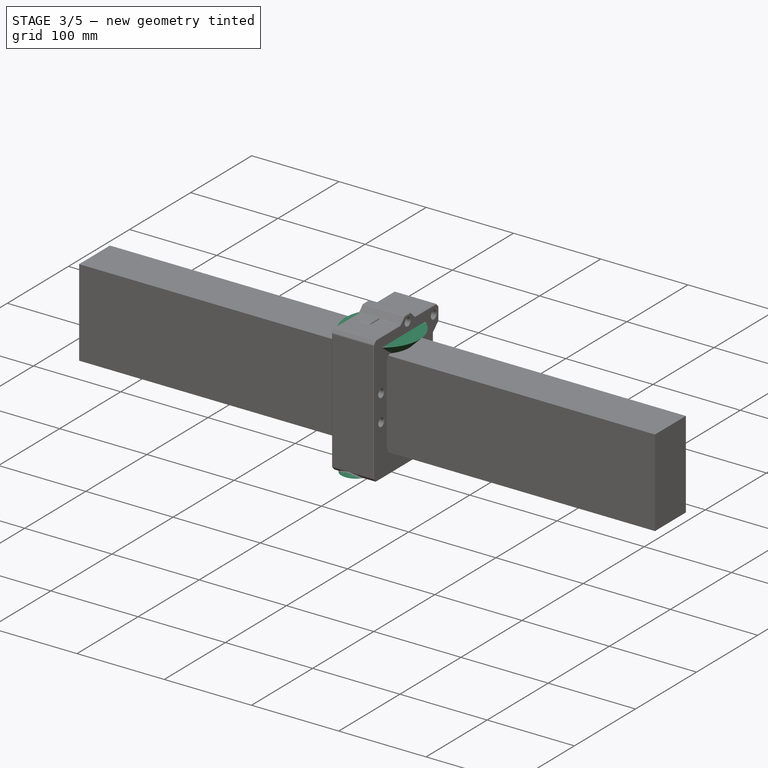
[diagram: stage 3 of 5 — iso view after this stage's code; geometry added in this stage tinted green]
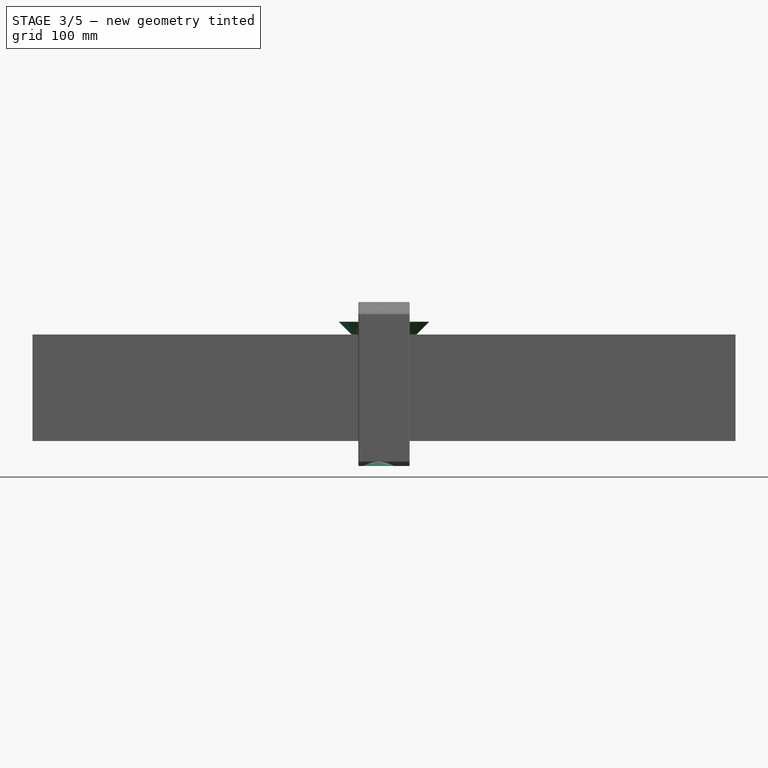
[diagram: stage 3 of 5 — front view after this stage's code; geometry added in this stage tinted green]
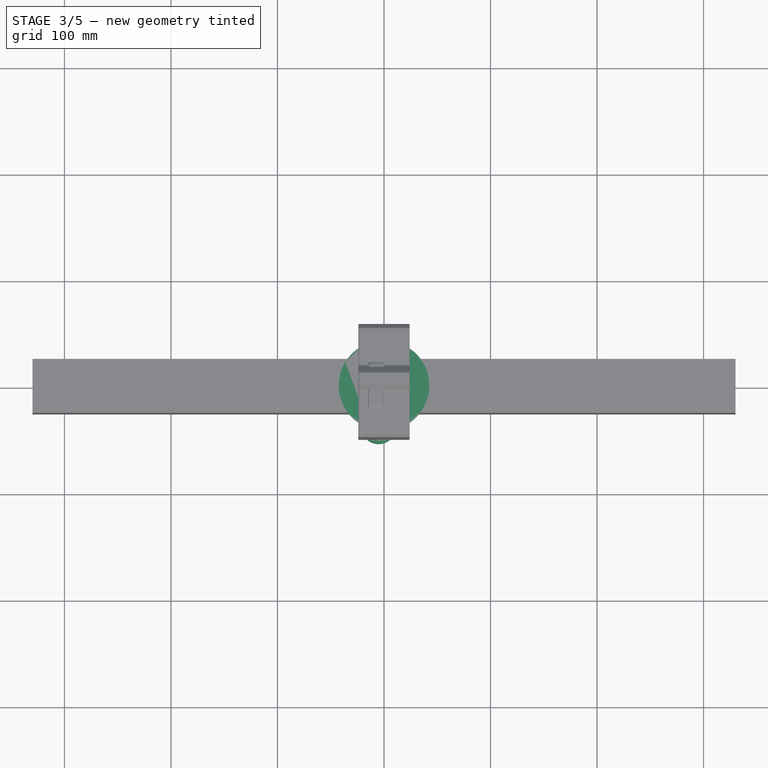
[diagram: stage 3 of 5 — top view after this stage's code; geometry added in this stage tinted green]
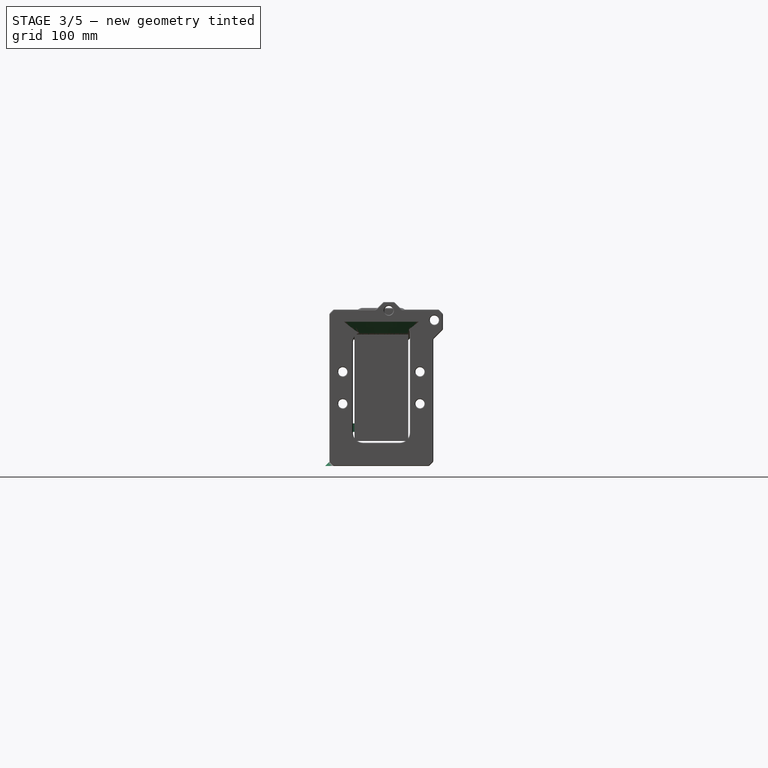
[diagram: stage 3 of 5 — right view after this stage's code; geometry added in this stage tinted green]
FEATURE [PartDesign::Body] Body  label="Steel tube"
  AllowCompound = false
  Group = -> [Sketch,Pad,Fillet,Thickness]
  Origin = -> Origin
  Tip = -> Thickness
FEATURE [Sketcher::SketchObject] Sketch002
  ArcFitTolerance = 1e-06
  AttachmentSupport = -> [XY_Plane001]
  FullyConstrained = true
  MakeInternals = false
  MapMode = 5
  expr: Constraints[2] = VarSet.Bearing_od
  expr: Constraints[3] = VarSet.Bearing_id
  sketch-geometry (2):
    g0: Circle CenterX=0 CenterY=0 CenterZ=0 NormalX=0 NormalY=0 NormalZ=1 AngleXU=0 Radius=11
    g1: Circle CenterX=0 CenterY=0 CenterZ=0 NormalX=0 NormalY=0 NormalZ=1 AngleXU=0 Radius=4
  constraints (4):
    c: Coincident(g0,g-1)
    c: Coincident(g1,g0)
    c: Diameter(g0) = 22
    c: Diameter(g1) = 8
FEATURE [PartDesign::Pad] Pad001
  Direction = (0,0,1)
  Length = 7
  Length2 = 10
  Midplane = true
  Profile = -> Sketch002
  ReferenceAxis = -> Sketch002 [N_Axis]
  Refine = true
  Suppressed = false
  Type = 0
  expr: Length = VarSet.Bearing_width
FEATURE [Sketcher::SketchObject] Sketch003
  ArcFitTolerance = 1e-06
  AttachmentSupport = -> [YZ_Plane006]
  FullyConstrained = true
  MakeInternals = false
  MapMode = 5
  Placement = pos=(0,0,0) rot=(0.57735,0.57735,0.57735;2.0944rad)
  expr: .Constraints.y = VarSet.Tube_width / 2 + VarSet.Carriage_to_tube_clearance
  expr: .Constraints.z = VarSet.Tube_height / 2 + VarSet.Carriage_to_tube_clearance
  expr: Constraints[22] = VarSet.Tube_height / 2 + VarSet.Carriage_to_bearing_top_clearance + VarSet.Bearing_od
  expr: Constraints[23] = VarSet.Tube_width / 2 + VarSet.Carriage_to_bearing_top_clearance + VarSet.Bearing_od
  sketch-geometry (10):
    g0: LineSegment StartX=26.75 StartY=-51.5 StartZ=0 EndX=26.75 EndY=51.5 EndZ=0
    g1: LineSegment StartX=26.75 StartY=51.5 StartZ=0 EndX=-26.75 EndY=51.5 EndZ=0
    g2: LineSegment StartX=-26.75 StartY=51.5 StartZ=0 EndX=-26.75 EndY=-51.5 EndZ=0
    g3: LineSegment StartX=-26.75 StartY=-51.5 StartZ=0 EndX=26.75 EndY=-51.5 EndZ=0
    g4: GeomPoint [constr] X=0 Y=0 Z=0
    g5: LineSegment StartX=48.75 StartY=-73.5 StartZ=0 EndX=48.75 EndY=73.5 EndZ=0
    g6: LineSegment StartX=48.75 StartY=73.5 StartZ=0 EndX=-48.75 EndY=73.5 EndZ=0
    g7: LineSegment StartX=-48.75 StartY=73.5 StartZ=0 EndX=-48.75 EndY=-73.5 EndZ=0
    g8: LineSegment StartX=-48.75 StartY=-73.5 StartZ=0 EndX=48.75 EndY=-73.5 EndZ=0
    g9: GeomPoint [constr] X=0 Y=0 Z=0
  constraints (24):
    c: Coincident(g0,g1)
    c: Coincident(g1,g2)
    c: Coincident(g2,g3)
    c: Coincident(g3,g0)
    c: Vertical(g0)
    c: Vertical(g2)
    c: Horizontal(g1)
    c: Horizontal(g3)
    c: Symmetric(g2,g0,g4)
    c: Coincident(g4,g-1)
    c: Coincident(g5,g6)
    c: Coincident(g6,g7)
    c: Coincident(g7,g8)
    c: Coincident(g8,g5)
    c: Vertical(g5)
    c: Vertical(g7)
    c: Horizontal(g6)
    c: Horizontal(g8)
    c: Symmetric(g7,g5,g9)
    c: Coincident(g9,g4)
    c: DistanceY(g-1,g0) = 51.5  'z'
    c: DistanceX(g-2,g0) = 26.75  'y'
    c: DistanceY(g-1,g5) = 73.5
    c: DistanceX(g-2,g5) = 48.75
FEATURE [PartDesign::Fillet] Fillet001
  Base = -> Pad001 [Face3,Face4]
  BaseFeature = -> Pad001
  Radius = 0.5
  Refine = true
  SupportTransform = false
  Suppressed = false
  UseAllEdges = false
FEATURE [PartDesign::Body] Body001  label="Bearing"
  AllowCompound = false
  Group = -> [Sketch002,Pad001,Fillet001]
  Origin = -> Origin001
  Tip = -> Fillet001
FEATURE [Part::FeaturePython] Clone  label="Bearing001"  # Draft clone (typed FeaturePython)
  AttacherType = Attacher::AttachEngine3D
  Fuse = false
  Objects = -> [Body001]
  Placement = pos=(-5,-36.25,-37.5) rot=(0,0,1;0rad)
  Scale = (1,1,1)
  expr: .Placement.Base.x = -VarSet.Bearing_axle_screw_diameter / 2 - VarSet.Screw_offset / 2
  expr: .Placement.Base.y = -VarSet.Tube_width / 2 - VarSet.Bearing_od / 2
  expr: .Placement.Base.z = -VarSet.Tube_height / 2 + VarSet.Tube_fillet_radius + VarSet.Bearing_width / 2 + VarSet.Bearing_distance_from_fillet
FEATURE [PartDesign::Pad] Pad006
  BaseFeature = -> Pad005
  Direction = (0,0,1)
  Length = 13.5
  Length2 = 10
  Profile = -> Sketch008
  ReferenceAxis = -> Sketch008 [N_Axis]
  Refine = true
  Reversed = true
  Suppressed = false
  Type = 0
  expr: Length = VarSet.Bearing_axle_screw_length + 3 mm - Pad005.Length
FEATURE [Sketcher::SketchObject] Sketch009
  ArcFitTolerance = 1e-06
  AttachmentSupport = -> [Pad006]
  FullyConstrained = true
  MakeInternals = false
  MapMode = 5
  Placement = pos=(0,0,29.5) rot=(0,0,1;0rad)
  expr: Constraints[1] = VarSet.Bearing_axle_screw_head_pocket_diamter
  sketch-geometry (1):
    g0: Circle CenterX=0 CenterY=0 CenterZ=0 NormalX=0 NormalY=0 NormalZ=1 AngleXU=0 Radius=10
  constraints (2):
    c: Coincident(g0,g-1)
    c: Diameter(g0) = 20
FEATURE [PartDesign::Pad] Pad007
  BaseFeature = -> Pad006
  Direction = (0,0,1)
  Length = 6.5
  Length2 = 10
  Profile = -> Sketch009
  ReferenceAxis = -> Sketch009 [N_Axis]
  Refine = true
  Suppressed = false
  TaperAngle = 45
  Type = 0
  expr: Length = VarSet.Bearing_axle_screw_head_pocket_depth
FEATURE [PartDesign::Chamfer] Chamfer002
  Angle = 45
  Base = -> Pad007 [Edge46,Edge48]
  BaseFeature = -> Pad007
  ChamferType = 0
  FlipDirection = false
  Refine = true
  Size = 0.8
  Size2 = 1
  SupportTransform = false
  Suppressed = false
  UseAllEdges = false
FEATURE [PartDesign::Chamfer] Chamfer003
  Angle = 45
  Base = -> Chamfer002 [Edge51,Edge3]
  BaseFeature = -> Chamfer002
  ChamferType = 0
  FlipDirection = false
  Refine = true
  Size = 0.3
  Size2 = 1
  SupportTransform = false
  Suppressed = false
  UseAllEdges = false
FEATURE [Sketcher::SketchObject] Sketch013
  ArcFitTolerance = 1e-06
  AttachmentSupport = -> [YZ_Plane011]
  FullyConstrained = true
  MakeInternals = false
  MapMode = 5
  Placement = pos=(0,0,0) rot=(0.57735,0.57735,0.57735;2.0944rad)
  expr: .Constraints.z = Pad005.Length - VarSet.Bearing_axel_screw_oval_hole_depth
  expr: Constraints[12] = VarSet.Bearing_axle_screw_diameter_loose_diamter + VarSet.Tuning_range_bearing
  expr: Constraints[7] = -Pad006.Length
  expr: Constraints[8] = VarSet.Bearing_axle_screw_diameter_loose_diamter
  sketch-geometry (5):
    g0: LineSegment StartX=-4.25 StartY=24.5 StartZ=0 EndX=-5.80102 EndY=-13.5 EndZ=0
    g1: LineSegment StartX=-5.80102 StartY=-13.5 StartZ=0 EndX=5.80102 EndY=-13.5 EndZ=0
    g2: LineSegment StartX=5.80102 StartY=-13.5 StartZ=0 EndX=4.25 EndY=24.5 EndZ=0
    g3: LineSegment StartX=4.25 StartY=24.5 StartZ=0 EndX=-4.25 EndY=24.5 EndZ=0
    g4: LineSegment [constr] StartX=-5.25 StartY=0 StartZ=0 EndX=5.25 EndY=0 EndZ=0
  constraints (14):
    c: Coincident(g0,g1)
    c: Coincident(g1,g2)
    c: Coincident(g2,g3)
    c: Coincident(g3,g0)
    c: Symmetric(g2,g0,g-2)
    c: Symmetric(g0,g1,g-2)
    c: DistanceY(g-1,g2) = 24.5  'z'
    c: DistanceY(g-1,g1) = -13.5
    c: Distance(g3) = 8.5
    c: Distance(g1) = 11.602
    c: PointOnObject(g4,g-1)
    c: Symmetric(g4,g4,g-2)
    c: Distance(g4) = 10.5
    c: PointOnObject(g4,g0)
FEATURE [PartDesign::Pad] Pad008
  Direction = (1,0,0)
  Length = 8.5
  Length2 = 10
  Midplane = true
  Placement = pos=(0,0,0) rot=(1,1,1;2.0944rad)
  Profile = -> Sketch013
  ReferenceAxis = -> Sketch013 [N_Axis]
  Refine = true
  Suppressed = false
  Type = 0
  expr: Length = VarSet.Bearing_axle_screw_diameter_loose_diamter
FEATURE [PartDesign::Chamfer] Chamfer004
  Angle = 45
  Base = -> Pad008 [Edge4,Edge3,Edge10,Edge9]
  BaseFeature = -> Pad008
  ChamferType = 0
  FlipDirection = false
  Placement = pos=(0,0,0) rot=(1,1,1;2.0944rad)
  Refine = true
  Size = 2.42857
  Size2 = 1
  SupportTransform = false
  Suppressed = false
  UseAllEdges = false
  expr: Size = VarSet.Bearing_axle_screw_diameter_loose_diamter / 3.5
FEATURE [PartDesign::Chamfer] Chamfer005
  Angle = 45
  Base = -> Chamfer004 [Face5]
  BaseFeature = -> Chamfer004
  ChamferType = 0
  FlipDirection = false
  Placement = pos=(0,0,0) rot=(1,1,1;2.0944rad)
  Refine = true
  Size = 0.8
  Size2 = 1
  SupportTransform = false
  Suppressed = false
  UseAllEdges = false
FEATURE [Sketcher::SketchObject] Sketch014
  ArcFitTolerance = 1e-06
  AttachmentOffset = pos=(0,0,24.5) rot=(0,0,1;0rad)
  AttachmentSupport = -> [XY_Plane011]
  FullyConstrained = false
  MakeInternals = false
  MapMode = 5
  Placement = pos=(0,0,24.5) rot=(0,0,1;0rad)
  expr: .AttachmentOffset.Base.z = Sketch013.Constraints.z
  expr: Constraints[5] = VarSet.Bearing_axle_screw_diameter
  expr: Constraints[6] = VarSet.Bearing_axle_screw_diameter_oval_selftap_diameter
  sketch-geometry (5):
    g0: Ellipse CenterX=0 CenterY=0 CenterZ=0 NormalX=0 NormalY=0 NormalZ=1 MajorRadius=4 MinorRadius=3.75 AngleXU=-1.5708
    g1: LineSegment [constr] StartX=1e-16 StartY=-4 StartZ=0 EndX=-1e-16 EndY=4 EndZ=0
    g2: LineSegment [constr] StartX=3.75 StartY=1e-16 StartZ=0 EndX=-3.75 EndY=-1e-16 EndZ=0
    g3: GeomPoint [constr] X=2e-16 Y=-1.39194 Z=0
    g4: GeomPoint [constr] X=0 Y=1.39194 Z=0
  constraints (4):
    c: InternalAlignment(g1-g4 -> g0) x4
    c: Coincident(g0,g-1)
    c: Distance(g1,g1) = 8
    c: Distance(g2,g2) = 7.5
FEATURE [PartDesign::Pad] Pad009
  BaseFeature = -> Chamfer005
  Direction = (0,0,1)
  Length = 5
  Length2 = 10
  Placement = pos=(0,0,0) rot=(1,1,1;2.0944rad)
  Profile = -> Sketch014
  ReferenceAxis = -> Sketch014 [N_Axis]
  Refine = true
  Suppressed = false
  Type = 0
  expr: Length = VarSet.Bearing_axel_screw_oval_hole_depth
FEATURE [Sketcher::SketchObject] Sketch015
  ArcFitTolerance = 1e-06
  AttachmentOffset = pos=(0,0,29.5) rot=(0,0,1;0rad)
  AttachmentSupport = -> [XY_Plane011]
  FullyConstrained = true
  MakeInternals = false
  MapMode = 5
  Placement = pos=(0,0,29.5) rot=(0,0,1;0rad)
  expr: .AttachmentOffset.Base.z = Sketch013.Constraints.z + VarSet.Bearing_axel_screw_oval_hole_depth
  expr: Constraints[1] = VarSet.Bearing_axle_screw_head_pocket_diamter
  sketch-geometry (1):
    g0: Circle CenterX=0 CenterY=0 CenterZ=0 NormalX=0 NormalY=0 NormalZ=1 AngleXU=0 Radius=10
  constraints (2):
    c: Coincident(g0,g-1)
    c: Diameter(g0) = 20
FEATURE [PartDesign::Pad] Pad010
  BaseFeature = -> Pad009
  Direction = (0,0,1)
  Length = 32.5
  Length2 = 10
  Placement = pos=(0,0,0) rot=(1,1,1;2.0944rad)
  Profile = -> Sketch015
  ReferenceAxis = -> Sketch015 [N_Axis]
  Refine = true
  Suppressed = false
  TaperAngle = 45
  Type = 0
  expr: Length = VarSet.Bearing_axle_screw_head_pocket_depth * 5
FEATURE [Sketcher::SketchObject] Sketch016
  ArcFitTolerance = 1e-06
  AttachmentSupport = -> [XZ_Plane011]
  FullyConstrained = true
  MakeInternals = false
  MapMode = 5
  Placement = pos=(0,0,0) rot=(1,0,0;1.5708rad)
  expr: .Constraints.z = -VarSet.Bearing_width / 2 - VarSet.Bearing_slot_width_margin / 2 - VarSet.Bearing_tuning_screw_selftap_diameter / 2 - 1.8 mm
  expr: Constraints[1] = VarSet.Bearing_tuning_screw_selftap_diameter
  sketch-geometry (1):
    g0: Circle CenterX=0 CenterY=-8.1 CenterZ=0 NormalX=0 NormalY=0 NormalZ=1 AngleXU=0 Radius=2.3
  constraints (3):
    c: PointOnObject(g0,g-2)
    c: Diameter(g0) = 4.6
    c: DistanceY(g-1,g0) = -8.1  'z'
FEATURE [PartDesign::Pad] Pad011
  BaseFeature = -> Pad010
  Direction = (0,-1,2e-16)
  Length = 11.5
  Length2 = 10
  Placement = pos=(0,0,0) rot=(1,1,1;2.0944rad)
  Profile = -> Sketch016
  ReferenceAxis = -> Sketch016 [N_Axis]
  Refine = true
  Suppressed = false
  Type = 0
  expr: Length = VarSet.Bearing_od / 2 + VarSet.Carriage_to_bearing_top_clearance - 1 mm
FEATURE [Part::FeaturePython] Clone012  label="Clone - hole maker non adjustable - for bearing001"  # Draft clone (typed FeaturePython)
  AttacherType = Attacher::AttachEngine3D
  Fuse = false
  Objects = -> [Body004]
  Placement = pos=(-5,-36.25,-37.5) rot=(0,1,0;3.14159rad)
  Scale = (1,1,1)
  expr: .Placement.Base.x = <<Bearing001>>.Placement.Base.x
  expr: .Placement.Base.y = <<Bearing001>>.Placement.Base.y
  expr: .Placement.Base.z = <<Bearing001>>.Placement.Base.z
FEATURE [Sketcher::SketchObject] Sketch017
  ArcFitTolerance = 1e-06
  AttachmentOffset = pos=(0,0,11.5) rot=(0,0,1;0rad)
  AttachmentSupport = -> [XZ_Plane011]
  FullyConstrained = true
  MakeInternals = false
  MapMode = 5
  Placement = pos=(0,-11.5,2.6e-15) rot=(1,0,0;1.5708rad)
  expr: .AttachmentOffset.Base.z = VarSet.Bearing_od / 2 + VarSet.Carriage_to_bearing_top_clearance - 1 mm
  expr: Constraints[0] = VarSet.Bearing_tuning_screw_selftap_diameter
  expr: Constraints[1] = Sketch016.Constraints.z
  sketch-geometry (1):
    g0: Circle CenterX=0 CenterY=-8.1 CenterZ=0 NormalX=0 NormalY=0 NormalZ=1 AngleXU=0 Radius=2.3
  constraints (3):
    c: Diameter(g0) = 4.6
    c: DistanceY(g-1,g0) = -8.1
    c: PointOnObject(g0,g-2)
FEATURE [PartDesign::Pad] Pad012
  BaseFeature = -> Pad011
  Direction = (0,-1,2e-16)
  Length = 1
  Length2 = 10
  Placement = pos=(0,0,0) rot=(1,1,1;2.0944rad)
  Profile = -> Sketch017
  ReferenceAxis = -> Sketch017 [N_Axis]
  Refine = true
  Suppressed = false
  TaperAngle = 45
  Type = 0
FEATURE [PartDesign::Chamfer] Chamfer006
  Angle = 45
  Base = -> Pad012 [Edge44]
  BaseFeature = -> Pad012
  ChamferType = 0
  FlipDirection = false
  Placement = pos=(0,0,0) rot=(1,1,1;2.0944rad)
  Refine = true
  Size = 0.8
  Size2 = 1
  SupportTransform = false
  Suppressed = false
  UseAllEdges = false
FEATURE [PartDesign::Fillet] Fillet001
  Base = -> Fillet [Edge46,Edge42,Edge44,Edge48,Edge40,Vertex24,Edge22,Edge3,Edge38]
  BaseFeature = -> Fillet
  Placement = pos=(0,0,0) rot=(1,1,1;2.0944rad)
  Radius = 2
  Refine = true
  SupportTransform = false
  Suppressed = false
  UseAllEdges = false
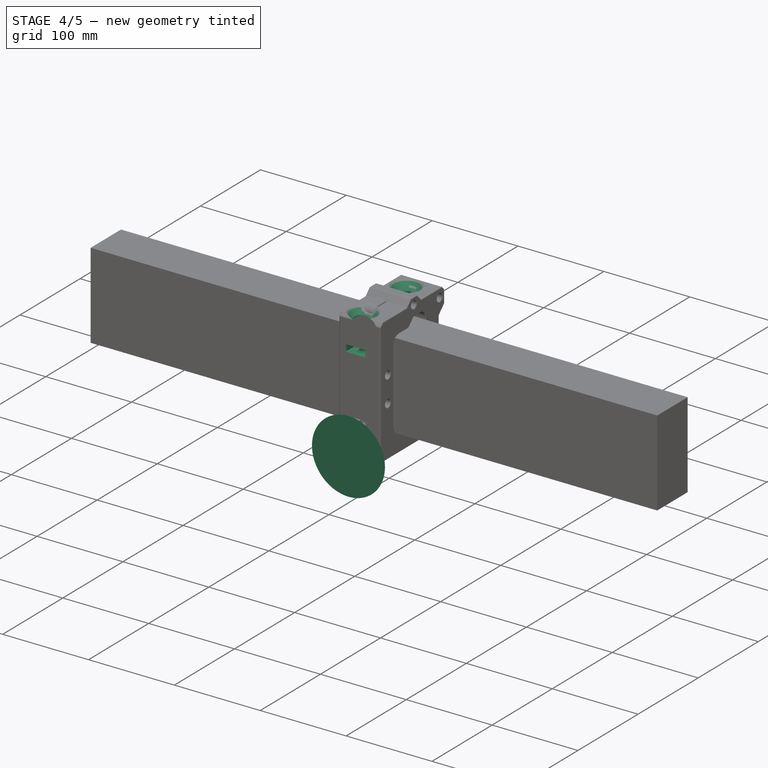
[diagram: stage 4 of 5 — iso view after this stage's code; geometry added in this stage tinted green]
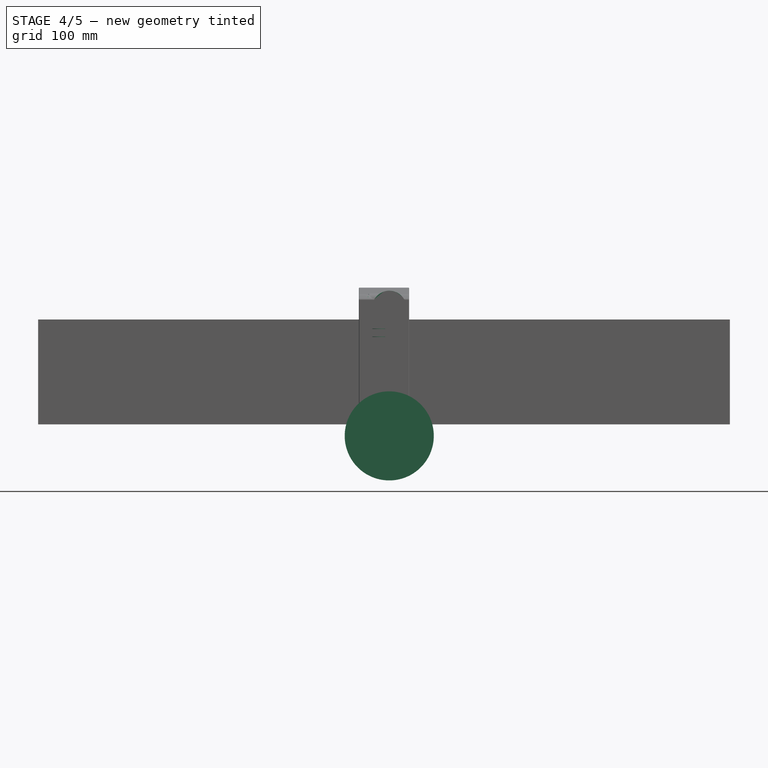
[diagram: stage 4 of 5 — front view after this stage's code; geometry added in this stage tinted green]
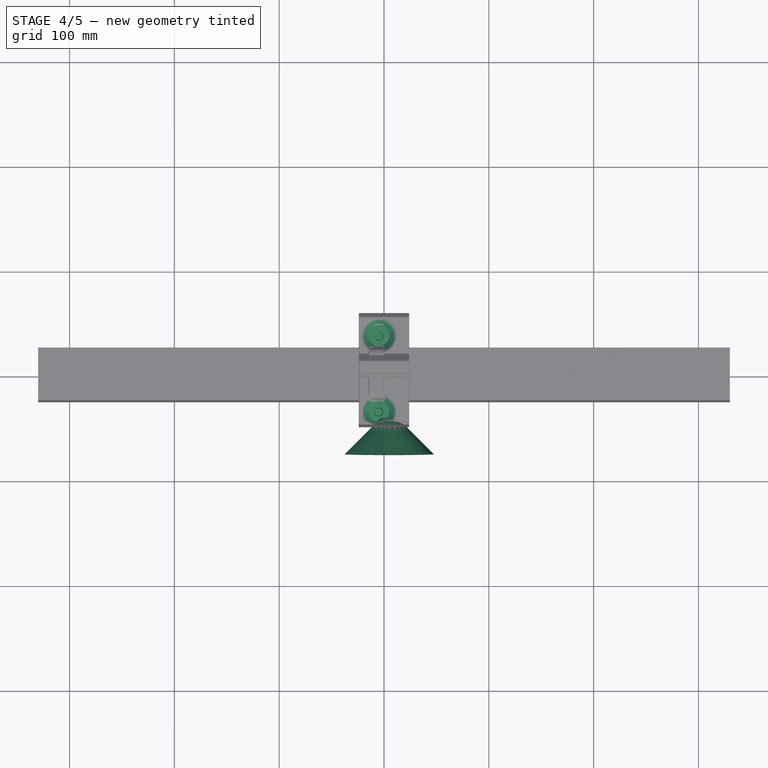
[diagram: stage 4 of 5 — top view after this stage's code; geometry added in this stage tinted green]
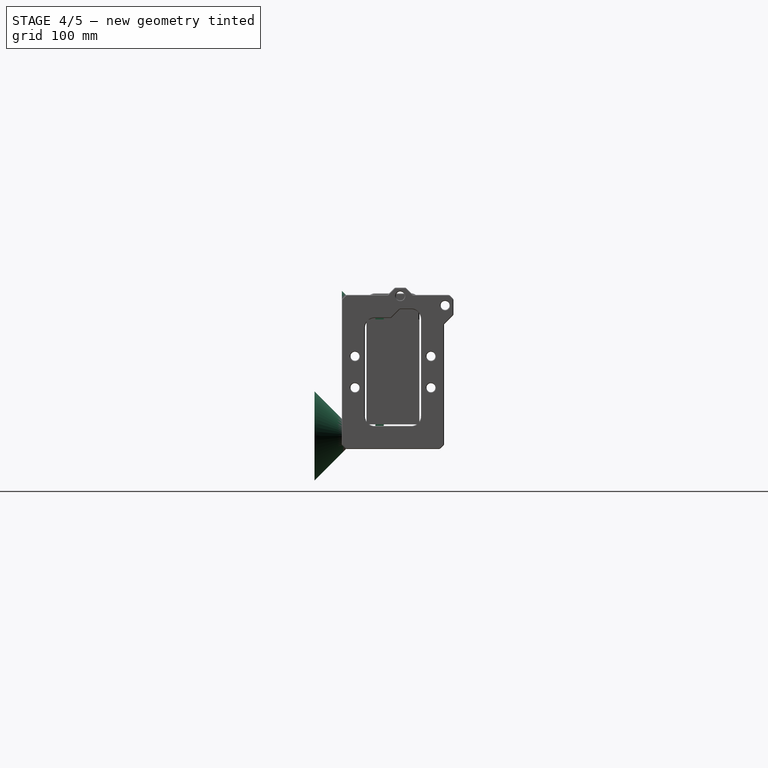
[diagram: stage 4 of 5 — right view after this stage's code; geometry added in this stage tinted green]
FEATURE [Part::FeaturePython] Clone001  label="Bearing002"  # Draft clone (typed FeaturePython)
  AttacherType = Attacher::AttachEngine3D
  Fuse = false
  Objects = -> [Body001]
  Placement = pos=(-5,-36.25,37.5) rot=(0,0,1;0rad)
  Scale = (1,1,1)
  expr: .Placement.Base.x = <<Bearing001>>.Placement.Base.x
  expr: .Placement.Base.y = <<Bearing001>>.Placement.Base.y
  expr: .Placement.Base.z = -<<Bearing001>>.Placement.Base.z
FEATURE [Part::FeaturePython] Clone002  label="Bearing003"  # Draft clone (typed FeaturePython)
  AttacherType = Attacher::AttachEngine3D
  Fuse = false
  Objects = -> [Body001]
  Placement = pos=(-5,36.25,-37.5) rot=(0,0,1;0rad)
  Scale = (1,1,1)
  expr: .Placement.Base.x = <<Bearing001>>.Placement.Base.x
  expr: .Placement.Base.y = -<<Bearing001>>.Placement.Base.y
  expr: .Placement.Base.z = <<Bearing001>>.Placement.Base.z
FEATURE [Part::FeaturePython] Clone003  label="Bearing004"  # Draft clone (typed FeaturePython)
  AttacherType = Attacher::AttachEngine3D
  Fuse = false
  Objects = -> [Body001]
  Placement = pos=(-5,36.25,37.5) rot=(0,0,1;0rad)
  Scale = (1,1,1)
  expr: .Placement.Base.x = <<Bearing001>>.Placement.Base.x
  expr: .Placement.Base.y = -<<Bearing001>>.Placement.Base.y
  expr: .Placement.Base.z = -<<Bearing001>>.Placement.Base.z
FEATURE [Part::FeaturePython] Clone004  label="Bearing005"  # Draft clone (typed FeaturePython)
  AttacherType = Attacher::AttachEngine3D
  Fuse = false
  Objects = -> [Body001]
  Placement = pos=(5,-12.75,-61) rot=(1,0,0;1.5708rad)
  Scale = (1,1,1)
  expr: .Placement.Base.x = +VarSet.Bearing_axle_screw_diameter / 2 + VarSet.Screw_offset / 2
  expr: .Placement.Base.y = -VarSet.Tube_width / 2 + VarSet.Tube_fillet_radius + VarSet.Bearing_width / 2 + VarSet.Bearing_distance_from_fillet
  expr: .Placement.Base.z = -VarSet.Tube_height / 2 - VarSet.Bearing_od / 2
FEATURE [Part::FeaturePython] Clone005  label="Bearing006"  # Draft clone (typed FeaturePython)
  AttacherType = Attacher::AttachEngine3D
  Fuse = false
  Objects = -> [Body001]
  Placement = pos=(5,-12.75,61) rot=(1,0,0;4.71239rad)
  Scale = (1,1,1)
  expr: .Placement.Base.x = <<Bearing005>>.Placement.Base.x
  expr: .Placement.Base.y = -VarSet.Tube_width / 2 + VarSet.Tube_fillet_radius + VarSet.Bearing_width / 2 + VarSet.Bearing_distance_from_fillet
  expr: .Placement.Base.z = -<<Bearing005>>.Placement.Base.z
FEATURE [PartDesign::FeatureBase] Clone007
  BaseFeature = -> LinearPattern
  Suppressed = false
FEATURE [PartDesign::Body] Body004  label="Body - hole maker non adjustable"
  AllowCompound = false
  Group = -> [Sketch005,Pad004,Sketch007,Pocket001,LinearPattern,Sketch008,Pad005,Pad006,Sketch009,Pad007,Chamfer002,Chamfer003]
  Origin = -> Origin008
  Tip = -> Chamfer003
FEATURE [Part::FeaturePython] Clone006  label="Clone - hole maker non adjustable - for bearing002"  # Draft clone (typed FeaturePython)
  AttacherType = Attacher::AttachEngine3D
  Fuse = false
  Objects = -> [Body004]
  Placement = pos=(-5,-36.25,37.5) rot=(0,0,1;0rad)
  Scale = (1,1,1)
  expr: .Placement.Base.x = <<Bearing002>>.Placement.Base.x
  expr: .Placement.Base.y = <<Bearing002>>.Placement.Base.y
  expr: .Placement.Base.z = <<Bearing002>>.Placement.Base.z
FEATURE [Part::FeaturePython] Clone008  label="Clone - hole maker non adjustable - for bearing006"  # Draft clone (typed FeaturePython)
  AttacherType = Attacher::AttachEngine3D
  Fuse = false
  Objects = -> [Body004]
  Placement = pos=(5,-12.75,61) rot=(0,-0.707107,0.707107;3.14159rad)
  Scale = (1,1,1)
  expr: .Placement.Base.x = <<Bearing006>>.Placement.Base.x
  expr: .Placement.Base.y = <<Bearing006>>.Placement.Base.y
  expr: .Placement.Base.z = <<Bearing006>>.Placement.Base.z
FEATURE [PartDesign::Body] Body007  label="Body for boolean - rotation hole"
  AllowCompound = false
  Group = -> [Sketch013,Pad008,Chamfer004,Chamfer005,Sketch014,Pad009,Sketch015,Pad010,Sketch016,Pad011,Sketch017,Pad012,Chamfer006]
  Origin = -> Origin011
  Tip = -> Chamfer006
FEATURE [Part::MultiFuse] Fusion001  label="Fusion - hole maker adjustable"
  Refine = true
  Shapes = -> [Body005,Body007]
FEATURE [Part::FeaturePython] Clone009  label="Clone - Hole maker adjustable - for bearing003"  # Draft clone (typed FeaturePython)
  AttacherType = Attacher::AttachEngine3D
  Fuse = false
  Objects = -> [Fusion001]
  Placement = pos=(-5,36.25,-37.5) rot=(1,0,0;3.14159rad)
  Scale = (1,1,1)
  expr: .Placement.Base.x = <<Bearing003>>.Placement.Base.x
  expr: .Placement.Base.y = <<Bearing003>>.Placement.Base.y
  expr: .Placement.Base.z = <<Bearing003>>.Placement.Base.z
FEATURE [Part::FeaturePython] Clone010  label="Clone - Hole maker adjustable - for bearing004"  # Draft clone (typed FeaturePython)
  AttacherType = Attacher::AttachEngine3D
  Fuse = false
  Objects = -> [Fusion001]
  Placement = pos=(-5,36.25,37.5) rot=(0,0,1;3.14159rad)
  Scale = (1,1,1)
  expr: .Placement.Base.x = <<Bearing004>>.Placement.Base.x
  expr: .Placement.Base.y = <<Bearing004>>.Placement.Base.y
  expr: .Placement.Base.z = <<Bearing004>>.Placement.Base.z
FEATURE [Part::FeaturePython] Clone011  label="Clone - Hole maker adjustable - for bearing005"  # Draft clone (typed FeaturePython)
  AttacherType = Attacher::AttachEngine3D
  Fuse = false
  Objects = -> [Fusion001]
  Placement = pos=(5,-12.75,-61) rot=(1,0,0;1.5708rad)
  Scale = (1,1,1)
  expr: .Placement.Base.x = <<Bearing005>>.Placement.Base.x
  expr: .Placement.Base.y = <<Bearing005>>.Placement.Base.y
  expr: .Placement.Base.z = <<Bearing005>>.Placement.Base.z
FEATURE [Part::Compound] Compound  label="Hole makers- verticals"
  Links = -> [Clone006,Clone012,Clone009,Clone010]
FEATURE [Part::Compound] Compound001  label="Hole makers horizontals"
  Links = -> [Clone008,Clone011]
FEATURE [PartDesign::Body] Body002  label="Carriage body"
  AllowCompound = false
  Group = -> [Sketch003,Pad002,Sketch006,Pocket,Fillet006,Fillet007,Chamfer,Sketch021,Pad015,Chamfer007,Fillet008,Sketch022,Pocket002,Chamfer008]
  Origin = -> Origin006
  Tip = -> Chamfer008
FEATURE [Part::Cut] Cut
  Base = -> Body002
  Refine = true
  Tool = -> Compound
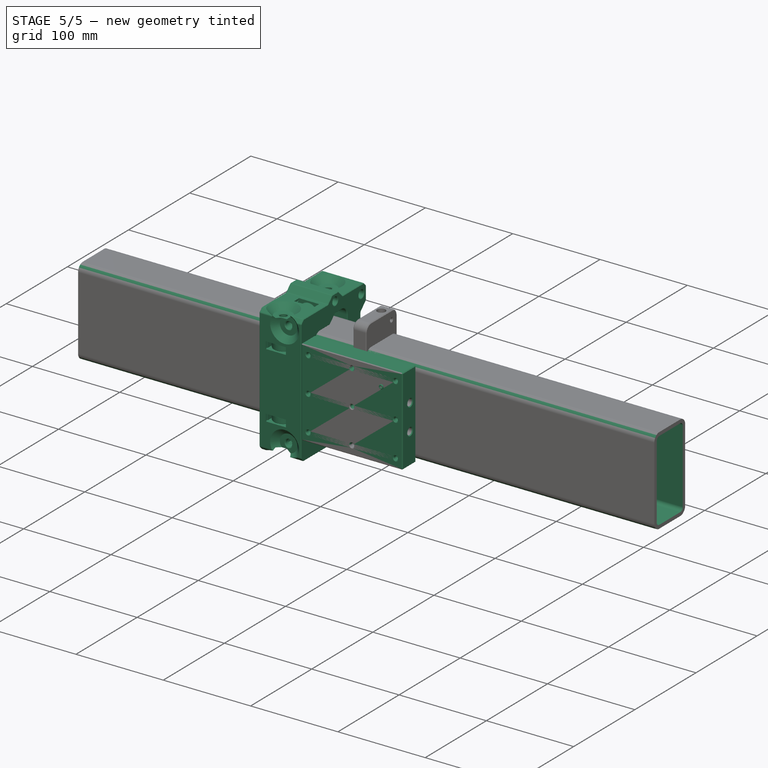
[diagram: stage 5 of 5 — iso view after this stage's code; geometry added in this stage tinted green]
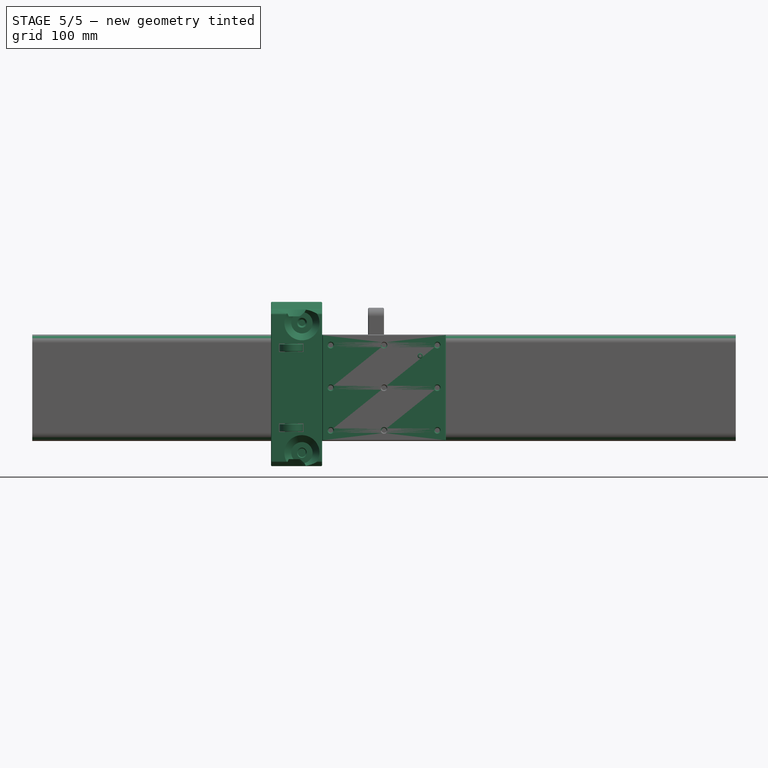
[diagram: stage 5 of 5 — front view after this stage's code; geometry added in this stage tinted green]
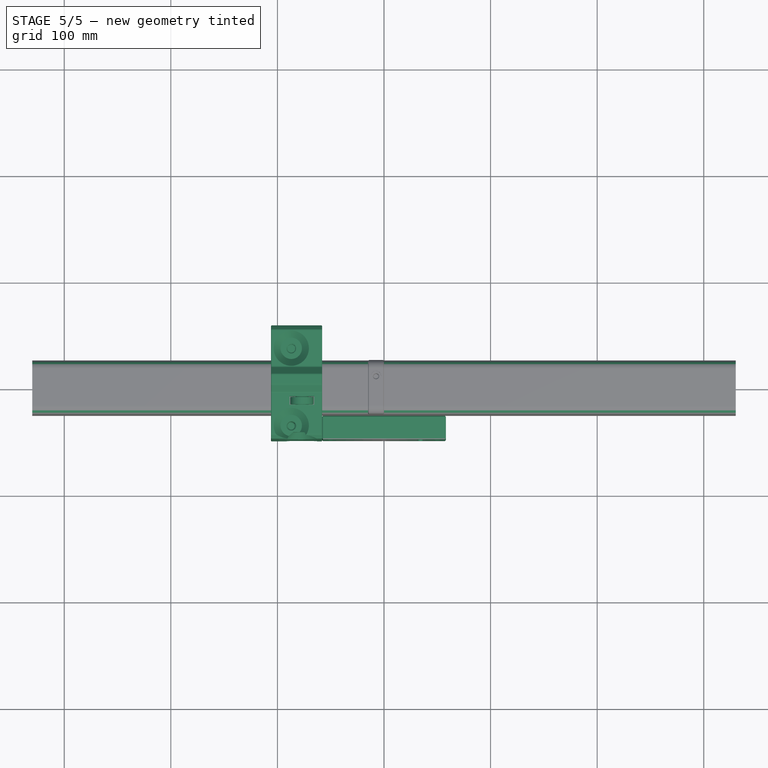
[diagram: stage 5 of 5 — top view after this stage's code; geometry added in this stage tinted green]
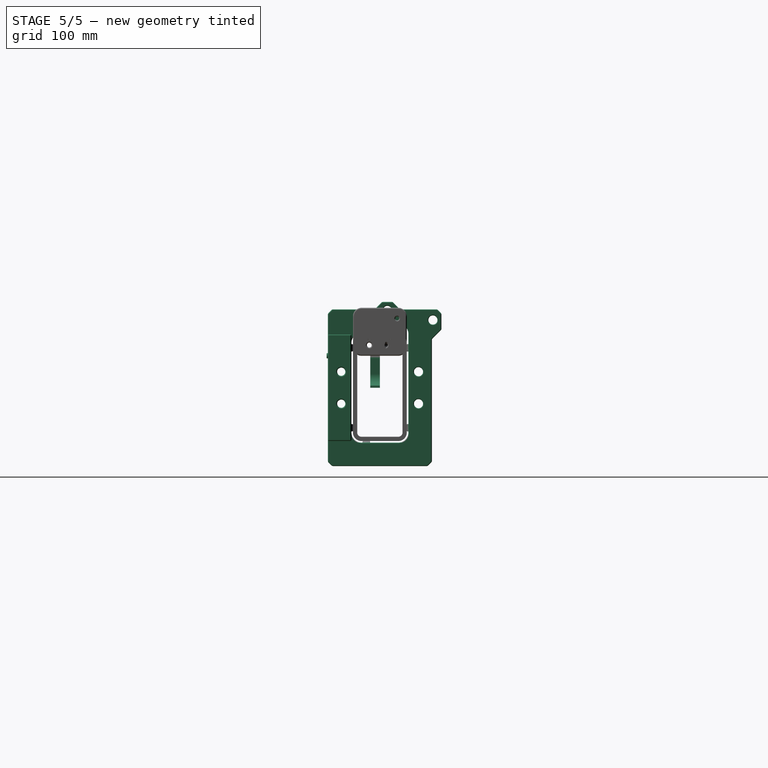
[diagram: stage 5 of 5 — right view after this stage's code; geometry added in this stage tinted green]
FEATURE [App::VarSet] VarSet
  Bearing_axel_screw_oval_hole_depth = 5
  Bearing_axle_screw_diameter = 8
  Bearing_axle_screw_diameter_loose_diamter = 8.5
  Bearing_axle_screw_diameter_oval_selftap_diameter = 7.5
  Bearing_axle_screw_head_pocket_depth = 6.5
  Bearing_axle_screw_head_pocket_diamter = 20
  Bearing_axle_screw_length = 40
  Bearing_axle_screw_selftap_diameter = 7.7
  Bearing_distance_from_edge = 8
  Bearing_distance_from_fillet = 1
  Bearing_id = 8
  Bearing_od = 22
  Bearing_slot_width_margin = 1
  Bearing_tuning_screw_selftap_diameter = 4.6
  Bearing_washer_protrusion = 0.36
  Bearing_width = 7
  Carriage_to_bearing_top_clearance = 1.5
  Carriage_to_tube_clearance = 1.5
  Drive_chain_slot_height = 10
  Drive_chain_slot_width = 20
  Pivot_joint_spacer_thickness = 1.2
  Screw_offset = 2
  Tube_fillet_radius = 8
  Tube_height = 100
  Tube_thickness = 4
  Tube_width = 50.5
  Tuning_range_bearing = 2
FEATURE [Sketcher::SketchObject] Sketch
  ArcFitTolerance = 1e-06
  AttachmentSupport = -> [YZ_Plane]
  FullyConstrained = true
  MakeInternals = false
  MapMode = 5
  Placement = pos=(0,0,0) rot=(0.57735,0.57735,0.57735;2.0944rad)
  expr: .Constraints.beamheight = VarSet.Tube_height
  expr: .Constraints.beamwidth = VarSet.Tube_width
  sketch-geometry (4):
    g0: LineSegment StartX=-25.25 StartY=-50 StartZ=0 EndX=25.25 EndY=-50 EndZ=0
    g1: LineSegment StartX=25.25 StartY=-50 StartZ=0 EndX=25.25 EndY=50 EndZ=0
    g2: LineSegment StartX=25.25 StartY=50 StartZ=0 EndX=-25.25 EndY=50 EndZ=0
    g3: LineSegment StartX=-25.25 StartY=50 StartZ=0 EndX=-25.25 EndY=-50 EndZ=0
  constraints (10):
    c: Horizontal(g2)
    c: Vertical(g3)
    c: Distance(g1,g3) = 50.5  'beamwidth'
    c: Distance(g0,g2) = 100  'beamheight'
    c: Coincident(g0,g1)
    c: Coincident(g2,g1)
    c: Coincident(g3,g0)
    c: Coincident(g2,g3)
    c: Symmetric(g0,g1,g-1)
    c: Symmetric(g0,g0,g-2)
FEATURE [PartDesign::Pad] Pad
  Direction = (1,0,0)
  Length = 660
  Length2 = 10
  Midplane = true
  Placement = pos=(0,0,0) rot=(1,1,1;2.0944rad)
  Profile = -> Sketch
  ReferenceAxis = -> Sketch [N_Axis]
  Refine = true
  Reversed = true
  Suppressed = false
  Type = 0
FEATURE [PartDesign::Fillet] Fillet
  Base = -> Pad [Edge5,Edge2,Edge8,Edge1]
  BaseFeature = -> Pad
  Placement = pos=(0,0,0) rot=(1,1,1;2.0944rad)
  Radius = 8
  Refine = true
  SupportTransform = false
  Suppressed = false
  UseAllEdges = false
  expr: Radius = VarSet.Tube_fillet_radius
FEATURE [PartDesign::Thickness] Thickness
  Base = -> Fillet [Face2,Face5]
  BaseFeature = -> Fillet
  Intersection = false
  Join = 0
  Mode = 0
  Refine = true
  Reversed = true
  SupportTransform = false
  Suppressed = false
  Value = 4
  expr: Value = VarSet.Tube_thickness
FEATURE [Part::FeaturePython] Screw  label="M8x1x40-Screw"  # WARN: FeaturePython — macro-defined, semantics opaque (R4)
  Diameter = 1
  Invert = false
  LeftHanded = false
  Length = 11
  LengthCustom = 40
  MatchOuter = false
  OffsetAngle = 0
  Placement = pos=(-5,-36.25,67.5) rot=(0,0,1;0rad)
  Thread = false
  Type = 42
  expr: .Placement.Base.x = <<Bearing001>>.Placement.Base.x
  expr: .Placement.Base.y = <<Bearing002>>.Placement.Base.y
FEATURE [Part::FeaturePython] Screw001  label="M5x10-Screw"  # WARN: FeaturePython — macro-defined, semantics opaque (R4)
  Diameter = 8
  Invert = false
  LeftHanded = false
  Length = 3
  LengthCustom = 10
  MatchOuter = false
  OffsetAngle = 0
  Placement = pos=(34,-50,30) rot=(1,0,0;1.5708rad)
  Thread = false
  Type = 70
FEATURE [Sketcher::SketchObject] Sketch018
  ArcFitTolerance = 1e-06
  AttachmentSupport = -> [XZ_Plane012]
  FullyConstrained = false
  MakeInternals = false
  MapMode = 5
  Placement = pos=(0,0,0) rot=(1,0,0;1.5708rad)
  expr: Constraints[31] = 16
  sketch-geometry (16):
    g0: LineSegment StartX=-200 StartY=0 StartZ=0 EndX=-21 EndY=0 EndZ=0
    g1: LineSegment StartX=21 StartY=0 StartZ=0 EndX=200 EndY=0 EndZ=0
    g2: ArcOfCircle CenterX=-1e-16 CenterY=26.9798 CenterZ=0 NormalX=0 NormalY=0 NormalZ=1 AngleXU=0 Radius=8 StartAngle=1e-16 EndAngle=3.14159
    g3: ArcOfCircle CenterX=-1e-16 CenterY=26.9798 CenterZ=0 NormalX=0 NormalY=0 NormalZ=1 AngleXU=0 Radius=10 StartAngle=0 EndAngle=3.14159
    g4: ArcOfCircle CenterX=-21 CenterY=13 CenterZ=0 NormalX=0 NormalY=0 NormalZ=1 AngleXU=0 Radius=13 StartAngle=4.71239 EndAngle=6.28319
    g5: ArcOfCircle CenterX=21 CenterY=13 CenterZ=0 NormalX=0 NormalY=0 NormalZ=1 AngleXU=0 Radius=13 StartAngle=3.14159 EndAngle=4.71239
    g6: ArcOfCircle CenterX=21 CenterY=13 CenterZ=0 NormalX=0 NormalY=0 NormalZ=1 AngleXU=0 Radius=11 StartAngle=3.14159 EndAngle=4.71239
    g7: ArcOfCircle CenterX=-21 CenterY=13 CenterZ=0 NormalX=0 NormalY=0 NormalZ=1 AngleXU=0 Radius=11 StartAngle=4.71239 EndAngle=6.28319
    g8: LineSegment StartX=-200 StartY=0 StartZ=0 EndX=-200 EndY=2 EndZ=0
    g9: LineSegment StartX=-200 StartY=2 StartZ=0 EndX=-21 EndY=2 EndZ=0
    g10: LineSegment StartX=200 StartY=0 StartZ=0 EndX=200 EndY=2 EndZ=0
    g11: LineSegment StartX=200 StartY=2 StartZ=0 EndX=21 EndY=2 EndZ=0
    g12: LineSegment StartX=-10 StartY=26.9798 StartZ=0 EndX=-10 EndY=13 EndZ=0
    g13: LineSegment StartX=-8 StartY=26.9798 StartZ=0 EndX=-8 EndY=13 EndZ=0
    g14: LineSegment StartX=8 StartY=26.9798 StartZ=0 EndX=8 EndY=13 EndZ=0
    g15: LineSegment StartX=10 StartY=26.9798 StartZ=0 EndX=10 EndY=13 EndZ=0
  constraints (36):
    c: PointOnObject(g0,g-1)
    c: PointOnObject(g0,g-1)
    c: PointOnObject(g1,g-1)
    c: Coincident(g3,g2)
    c: Coincident(g6,g5)
    c: Coincident(g7,g4)
    c: Coincident(g0,g8)
    c: Vertical(g8)
    c: Coincident(g8,g9)
    c: Horizontal(g9)
    c: Coincident(g1,g10)
    c: Vertical(g10)
    c: Coincident(g10,g11)
    c: Horizontal(g11)
    c: Tangent(g1,g5) = -1.5708
    c: Tangent(g6,g11) = 1.5708
    c: Tangent(g5,g14) = -1.5708
    c: Tangent(g15,g6) = -1.5708
    c: Tangent(g15,g3) = 1.5708
    c: Tangent(g14,g2) = 1.5708
    c: Tangent(g4,g0) = -1.5708
    c: Tangent(g7,g9) = -1.5708
    c: Tangent(g7,g12) = 1.5708
    c: Tangent(g4,g13) = 1.5708
    c: Tangent(g13,g2) = -1.5708
    c: Tangent(g12,g3) = -1.5708
    c: Parallel(g12,g13)
    c: Parallel(g14,g15)
    c: Symmetric(g2,g2,g-2)
    c: Vertical(g12)
    c: Distance(g8) = 2
    c: Diameter(g2) = 16
    c: Equal(g7,g6)
    c: Diameter(g7) = 22
    c: Symmetric(g0,g1,g-2)
    c: Distance(g0,g1) = 400
FEATURE [PartDesign::Pad] Pad013
  Direction = (0,-1,2e-16)
  Length = 9
  Length2 = 10
  Placement = pos=(0,0,0) rot=(1,0,0;1.5708rad)
  Profile = -> Sketch018
  ReferenceAxis = -> Sketch018 [N_Axis]
  Refine = true
  Suppressed = false
  Type = 0
FEATURE [PartDesign::Body] Body008  label="Belt"
  AllowCompound = false
  Group = -> [Sketch018,Pad013]
  Origin = -> Origin012
  Placement = pos=(0,17.25,51.5) rot=(0,0,1;0rad)
  Tip = -> Pad013
  expr: .Placement.Base.y = VarSet.Tube_width / 2 - VarSet.Tube_fillet_radius
  expr: .Placement.Base.z = VarSet.Tube_height / 2 + 1.5 mm
FEATURE [Sketcher::SketchObject] Sketch019
  ArcFitTolerance = 1e-06
  AttachmentOffset = pos=(0,-12.7,12.5) rot=(0,0,1;0rad)
  AttachmentSupport = -> [XZ_Plane013]
  FullyConstrained = true
  MakeInternals = false
  MapMode = 5
  Placement = pos=(0,-12.5,-12.7) rot=(1,0,0;1.5708rad)
  expr: .AttachmentOffset.Base.y = Sketch016.Constraints.z - VarSet.Bearing_tuning_screw_selftap_diameter
  expr: .AttachmentOffset.Base.z = VarSet.Bearing_od / 2 + VarSet.Carriage_to_bearing_top_clearance
  sketch-geometry (10):
    g0: LineSegment StartX=-1.25 StartY=-12 StartZ=0 EndX=1.25 EndY=-12 EndZ=0
    g1: LineSegment StartX=1.25 StartY=-12 StartZ=0 EndX=1.25 EndY=-3.82843 EndZ=0
    g2: LineSegment StartX=1.25 StartY=-3.82843 StartZ=0 EndX=3.5 EndY=-6.07843 EndZ=0
    g3: LineSegment StartX=3.5 StartY=-6.07843 StartZ=0 EndX=3.5 EndY=-3.25 EndZ=0
    g4: LineSegment StartX=3.5 StartY=-3.25 StartZ=0 EndX=0.25 EndY=-4e-16 EndZ=0
    g5: LineSegment StartX=0.25 StartY=-4e-16 StartZ=0 EndX=-0.25 EndY=0 EndZ=0
    g6: LineSegment StartX=-0.25 StartY=0 StartZ=0 EndX=-3.5 EndY=-3.25 EndZ=0
    g7: LineSegment StartX=-3.5 StartY=-3.25 StartZ=0 EndX=-3.5 EndY=-6.07843 EndZ=0
    g8: LineSegment StartX=-3.5 StartY=-6.07843 StartZ=0 EndX=-1.25 EndY=-3.82843 EndZ=0
    g9: LineSegment StartX=-1.25 StartY=-3.82843 StartZ=0 EndX=-1.25 EndY=-12 EndZ=0
  constraints (26):
    c: Horizontal(g0)
    c: Coincident(g0,g1)
    c: Vertical(g1)
    c: Coincident(g1,g2)
    c: Coincident(g2,g3)
    c: Vertical(g3)
    c: Coincident(g3,g4)
    c: Coincident(g4,g5)
    c: Coincident(g5,g6)
    c: Coincident(g6,g7)
    c: Coincident(g7,g8)
    c: Coincident(g8,g9)
    c: Coincident(g9,g0)
    c: Vertical(g9)
    c: Symmetric(g5,g4,g-2)
    c: Symmetric(g6,g3,g-2)
    c: Symmetric(g8,g1,g-2)
    c: Symmetric(g7,g2,g-2)
    c: Distance(g5) = 0.5
    c: Parallel(g8,g6)
    c: Distance(g8,g6) = 2
    c: Distance(g0) = 2.5
    c: Angle(g8,g9) = 0.785398
    c: Distance(g7,g2) = 7
    c: PointOnObject(g4,g-1)
    c: DistanceY(g-1,g0) = -12
FEATURE [PartDesign::Pad] Pad014
  Direction = (0,-1,2e-16)
  Length = 0.5
  Length2 = 10
  Placement = pos=(0,0,0) rot=(1,0,0;1.5708rad)
  Profile = -> Sketch019
  ReferenceAxis = -> Sketch019 [N_Axis]
  Refine = true
  Reversed = true
  Suppressed = false
  Type = 0
FEATURE [PartDesign::Body] Body009  label="Tuning arrow"
  AllowCompound = false
  Group = -> [Sketch019,Pad014]
  Origin = -> Origin013
  Tip = -> Pad014
FEATURE [Part::FeaturePython] Clone013  label="Clone - Tuning arrow - for Bearing 003"  # Draft clone (typed FeaturePython)
  AttacherType = Attacher::AttachEngine3D
  Fuse = false
  Objects = -> [Body009]
  Placement = pos=(-5,36.25,-37.5) rot=(1,0,0;3.14159rad)
  Scale = (1,1,1)
  expr: .Placement.Base.x = <<Bearing003>>.Placement.Base.x
  expr: .Placement.Base.y = <<Bearing003>>.Placement.Base.y
  expr: .Placement.Base.z = <<Bearing003>>.Placement.Base.z
FEATURE [Part::FeaturePython] Clone014  label="Clone - Tuning arrow - for Bearing 004"  # Draft clone (typed FeaturePython)
  AttacherType = Attacher::AttachEngine3D
  Fuse = false
  Objects = -> [Body009]
  Placement = pos=(-5,36.25,37.5) rot=(0,0,1;3.14159rad)
  Scale = (1,1,1)
  expr: .Placement.Base.x = <<Bearing004>>.Placement.Base.x
  expr: .Placement.Base.y = <<Bearing004>>.Placement.Base.y
  expr: .Placement.Base.z = <<Bearing004>>.Placement.Base.z
FEATURE [Part::FeaturePython] Clone015  label="Clone - Tuning arrow - for Bearing 005"  # Draft clone (typed FeaturePython)
  AttacherType = Attacher::AttachEngine3D
  Fuse = false
  Objects = -> [Body009]
  Placement = pos=(5,-12.75,-61) rot=(1,0,0;1.5708rad)
  Scale = (1,1,1)
  expr: .Placement.Base.x = <<Bearing005>>.Placement.Base.x
  expr: .Placement.Base.y = <<Bearing005>>.Placement.Base.y
  expr: .Placement.Base.z = <<Bearing005>>.Placement.Base.z
FEATURE [Part::Compound] Compound002  label="Compund - Tuning arrows"
  Links = -> [Clone013,Clone014,Clone015]
FEATURE [Part::Cut] Cut001
  Base = -> Cut
  Refine = true
  Tool = -> Compound001
FEATURE [Part::Cut] Cut002  label="Carriage body - with holes cut"
  Base = -> Cut001
  Refine = true
  Tool = -> Compound002
FEATURE [App::Part] Part  label="Bearing ring 1"
  Group = -> [Compound,Compound001,Clone010,Clone009,Clone013,Clone014,Clone015,Compound002,Clone006,Clone008,Clone011,Clone012,Body002,Cut,Cut001,Cut002,Part001,Screw]
  Origin = -> Origin015
  Placement = pos=(82,0,0) rot=(0,0,1;0rad)
FEATURE [Part::FeaturePython] Clone016  label="Bearing ring 2"  # Draft clone (typed FeaturePython)
  AttacherType = Attacher::AttachEngine3D
  Fuse = false
  Objects = -> [Part]
  Placement = pos=(-82,0,0) rot=(0,0,1;0rad)
  Scale = (1,1,1)
  expr: .Placement.Base.x = -<<Bearing ring 1>>.Placement.Base.x
FEATURE [Sketcher::SketchObject] Sketch023
  ArcFitTolerance = 1e-06
  AttachmentSupport = -> [YZ_Plane016]
  FullyConstrained = true
  MakeInternals = false
  MapMode = 5
  Placement = pos=(0,0,0) rot=(0.57735,0.57735,0.57735;2.0944rad)
  expr: Constraints[10] = -VarSet.Tube_width / 2 - VarSet.Carriage_to_tube_clearance
  expr: Constraints[12] = Sketch022.Constraints.holespacing
  expr: Constraints[13] = -Sketch022.Constraints.holelocation
  expr: Constraints[15] = VarSet.Bearing_axle_screw_selftap_diameter
  expr: Constraints[8] = VarSet.Tube_height
  expr: Constraints[9] = -VarSet.Tube_width / 2 - VarSet.Bearing_od - VarSet.Carriage_to_bearing_top_clearance
  sketch-geometry (6):
    g0: LineSegment StartX=-48.75 StartY=50 StartZ=0 EndX=-48.75 EndY=-50 EndZ=0
    g1: LineSegment StartX=-48.75 StartY=-50 StartZ=0 EndX=-26.75 EndY=-50 EndZ=0
    g2: LineSegment StartX=-26.75 StartY=-50 StartZ=0 EndX=-26.75 EndY=50 EndZ=0
    g3: LineSegment StartX=-26.75 StartY=50 StartZ=0 EndX=-48.75 EndY=50 EndZ=0
    g4: Circle CenterX=-36.25 CenterY=15 CenterZ=0 NormalX=0 NormalY=0 NormalZ=1 AngleXU=0 Radius=3.85
    g5: Circle CenterX=-36.25 CenterY=-15 CenterZ=0 NormalX=0 NormalY=0 NormalZ=1 AngleXU=0 Radius=3.85
  constraints (16):
    c: Coincident(g0,g1)
    c: Coincident(g1,g2)
    c: Coincident(g2,g3)
    c: Coincident(g3,g0)
    c: Vertical(g2)
    c: Horizontal(g1)
    c: Horizontal(g3)
    c: Symmetric(g0,g0,g-1)
    c: Distance(g0) = 100
    c: DistanceX(g-2,g0) = -48.75
    c: DistanceX(g-2,g2) = -26.75
    c: Symmetric(g4,g5,g-1)
    c: Distance(g5,g4) = 30
    c: DistanceX(g-2,g4) = -36.25
    c: Equal(g5,g4)
    c: Diameter(g5) = 7.7
FEATURE [PartDesign::Pad] Pad016
  Direction = (1,0,0)
  Length = 116
  Length2 = 10
  Midplane = true
  Placement = pos=(0,0,0) rot=(1,1,1;2.0944rad)
  Profile = -> Sketch023
  ReferenceAxis = -> Sketch023 [N_Axis]
  Refine = true
  Suppressed = false
  Type = 0
  expr: Length = <<Bearing ring 1>>.Placement.Base.x * 2 - Pad002.Length
FEATURE [Sketcher::SketchObject] Sketch024
  ArcFitTolerance = 1e-06
  AttachmentSupport = -> [Pad016]
  FullyConstrained = false
  MakeInternals = false
  MapMode = 5
  Placement = pos=(-1.07e-14,-48.75,0) rot=(0.57735,0.57735,-0.57735;2.0944rad)
  sketch-geometry (9):
    g0: Circle CenterX=-40 CenterY=-50 CenterZ=0 NormalX=0 NormalY=0 NormalZ=1 AngleXU=0 Radius=3.64196
    g1: Circle CenterX=-40 CenterY=0 CenterZ=0 NormalX=0 NormalY=0 NormalZ=1 AngleXU=0 Radius=6.80044
    g2: Circle CenterX=-40 CenterY=50 CenterZ=0 NormalX=0 NormalY=0 NormalZ=1 AngleXU=0 Radius=7.67268
    g3: Circle CenterX=40 CenterY=50 CenterZ=0 NormalX=0 NormalY=0 NormalZ=1 AngleXU=0 Radius=3.2152
    g4: Circle CenterX=40 CenterY=0 CenterZ=0 NormalX=0 NormalY=0 NormalZ=1 AngleXU=0 Radius=11.4747
    g5: Circle CenterX=40 CenterY=-50 CenterZ=0 NormalX=0 NormalY=0 NormalZ=1 AngleXU=0 Radius=5.49329
    g6: Circle CenterX=0 CenterY=-50 CenterZ=0 NormalX=0 NormalY=0 NormalZ=1 AngleXU=0 Radius=9.23188
    g7: Circle CenterX=0 CenterY=0 CenterZ=0 NormalX=0 NormalY=0 NormalZ=1 AngleXU=0 Radius=8.68214
    g8: Circle CenterX=0 CenterY=50 CenterZ=0 NormalX=0 NormalY=0 NormalZ=1 AngleXU=0 Radius=6.29187
  constraints (14):
    c: PointOnObject(g1,g-1)
    c: PointOnObject(g4,g-1)
    c: PointOnObject(g6,g-2)
    c: Coincident(g7,g-1)
    c: PointOnObject(g8,g-2)
    c: Vertical(g0,g1)
    c: Vertical(g5,g4)
    c: Symmetric(g5,g3,g-1)
    c: Symmetric(g2,g0,g-1)
    c: Symmetric(g2,g3,g-2)
    c: Horizontal(g8,g3)
    c: Horizontal(g6,g5)
    c: Distance(g5,g0) = 80
    c: Distance(g0,g2) = 100
FEATURE [PartDesign::Hole] Hole
  BaseFeature = -> Pad016
  CustomThreadClearance = 0
  Depth = 316.338
  DepthType = 1
  Diameter = 4.6
  DrillForDepth = false
  DrillPoint = 1
  DrillPointAngle = 118
  HoleCutCountersinkAngle = 90
  HoleCutCustomValues = false
  HoleCutDepth = 0
  HoleCutDiameter = 6.1
  HoleCutType = 0
  ModelThread = false
  Placement = pos=(0,0,0) rot=(1,1,1;2.0944rad)
  Profile = -> Sketch024
  Refine = true
  Suppressed = false
  Tapered = false
  TaperedAngle = 90
  ThreadClass = 0
  ThreadDepth = 316.338
  ThreadDepthType = 0
  ThreadDirection = 0
  ThreadFit = 0
  ThreadSize = 0
  ThreadType = 0
  Threaded = false
  UseCustomThreadClearance = false
  expr: Diameter = VarSet.Bearing_tuning_screw_selftap_diameter
FEATURE [PartDesign::Chamfer] Chamfer009
  Angle = 45
  Base = -> Hole [Face1,Face4,Face3,Face15]
  BaseFeature = -> Hole
  ChamferType = 0
  FlipDirection = false
  Placement = pos=(0,0,0) rot=(1,1,1;2.0944rad)
  Refine = true
  Size = 0.8
  Size2 = 1
  SupportTransform = false
  Suppressed = false
  UseAllEdges = false
FEATURE [PartDesign::Fillet] Fillet
  Base = -> Pad [Edge26,Edge29,Edge20,Edge23]
  BaseFeature = -> Pad
  Placement = pos=(0,0,0) rot=(1,1,1;2.0944rad)
  Radius = 8
  Refine = true
  SupportTransform = false
  Suppressed = false
  UseAllEdges = false
FEATURE [Sketcher::SketchObject] Sketch001
  ArcFitTolerance = 1e-06
  AttachmentSupport = -> [XY_Plane]
  FullyConstrained = false
  MakeInternals = false
  MapMode = 5
  sketch-geometry (2):
    g0: Circle CenterX=0 CenterY=50 CenterZ=0 NormalX=0 NormalY=0 NormalZ=1 AngleXU=0 Radius=6.80163
    g1: Circle CenterX=0 CenterY=-50 CenterZ=0 NormalX=0 NormalY=0 NormalZ=1 AngleXU=0 Radius=7.68268
  constraints (3):
    c: PointOnObject(g0,g-2)
    c: Symmetric(g1,g0,g-1)
    c: Distance(g0,g1) = 100
FEATURE [PartDesign::Hole] Hole
  BaseFeature = -> Fillet001
  CustomThreadClearance = 0
  Depth = 364.397
  DepthType = 1
  Diameter = 4.6
  DrillForDepth = false
  DrillPoint = 1
  DrillPointAngle = 118
  HoleCutCountersinkAngle = 90
  HoleCutCustomValues = false
  HoleCutDepth = 0
  HoleCutDiameter = 6.1
  HoleCutType = 0
  ModelThread = false
  Placement = pos=(0,0,0) rot=(1,1,1;2.0944rad)
  Profile = -> Sketch001
  Refine = true
  Suppressed = false
  Tapered = false
  TaperedAngle = 90
  ThreadClass = 0
  ThreadDepth = 364.397
  ThreadDepthType = 0
  ThreadDirection = 0
  ThreadFit = 0
  ThreadSize = 0
  ThreadType = 0
  Threaded = false
  UseCustomThreadClearance = false
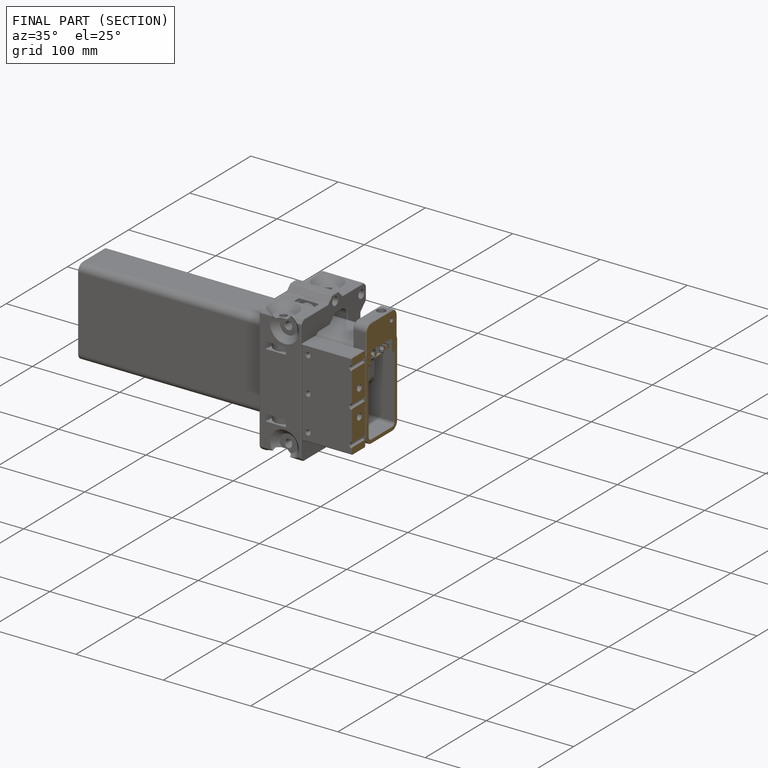
[diagram: finished part — half-section view (interior)]
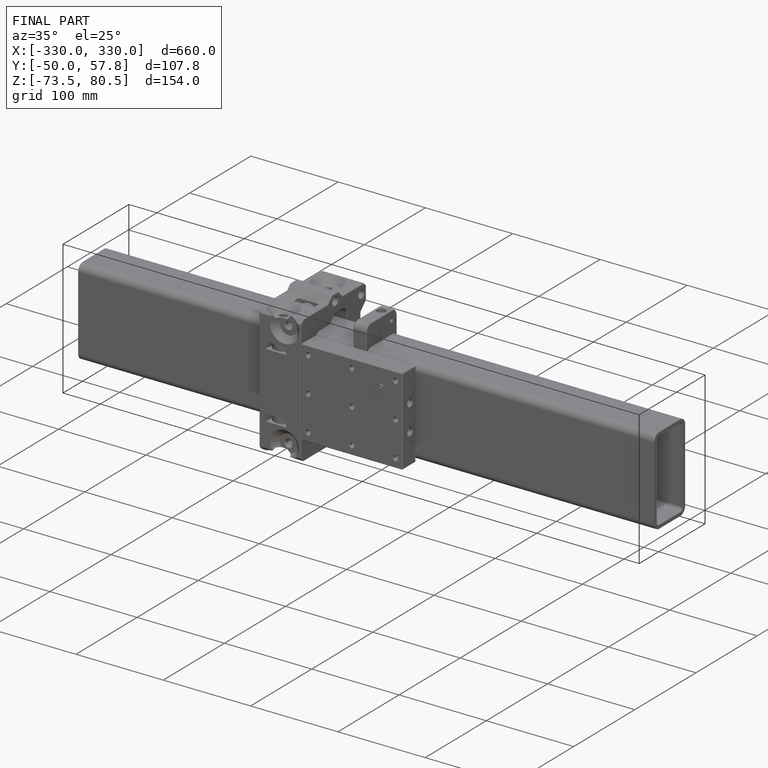
[diagram: finished part — iso view with bounding-box wireframe]
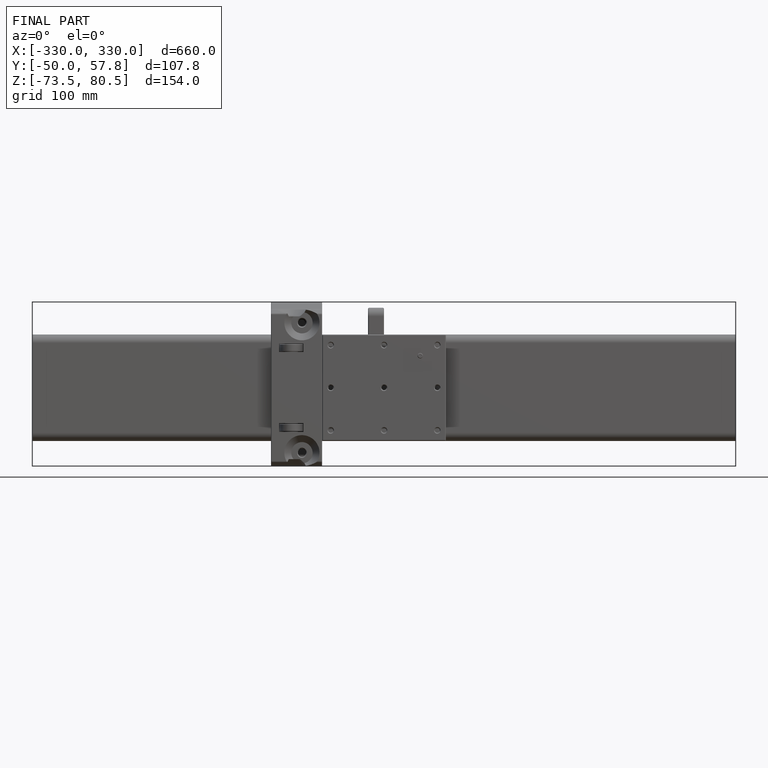
[diagram: finished part — front view with bounding-box wireframe]
